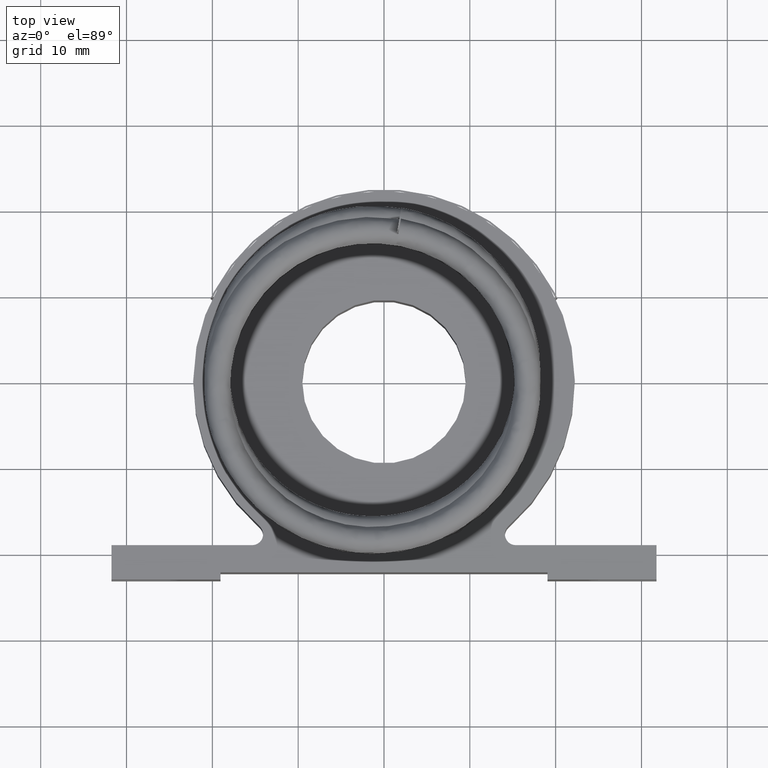
[diagram: clean part render]
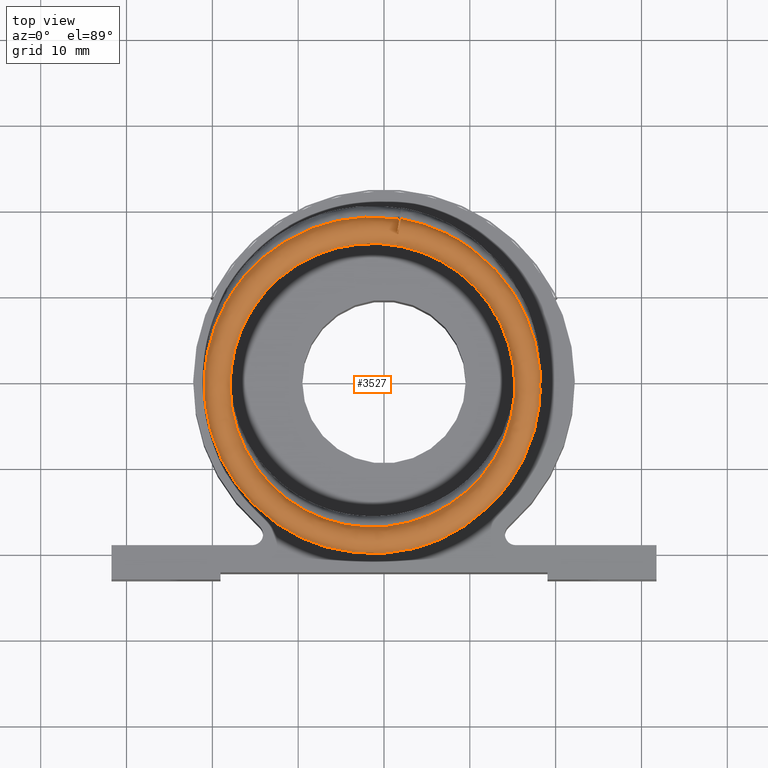
[diagram: same view with one face highlighted and labeled with its STEP entity id]
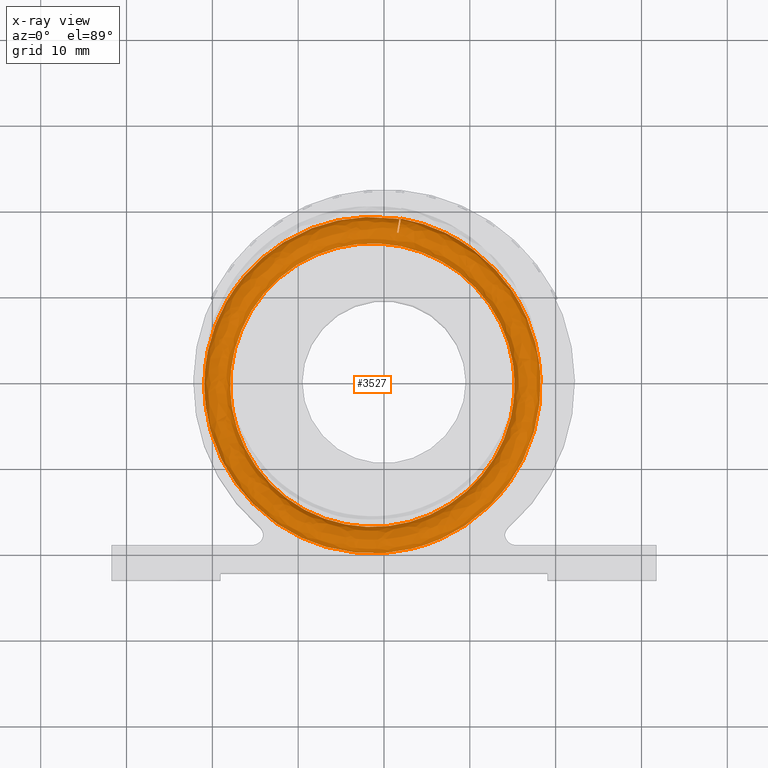
[diagram: x-ray of the same camera — body ghosted, the highlighted face saturated]
A machine part, top view. The second image highlights one B-rep face of the part: STEP entity #3527.
The next image is the same camera in x-ray: the body ghosted, the highlighted face saturated — about 0% of this face is hidden behind the body in this view.
In plain terms, the highlighted face is a freeform B-spline surface patch.
Its self-contained STEP definition (entity closure, byte-faithful):
#1315=CARTESIAN_POINT('',(2.767463303248415,18.488003495267634,22.667128851475837));
#1316=VERTEX_POINT('',#1315);
#1317=CARTESIAN_POINT('',(1.777487957128099,18.58833663540857,28.204418487805686));
#1318=VERTEX_POINT('',#1317);
#1319=CARTESIAN_POINT('',(2.767476702032136,18.488000571162775,22.667434783590092));
#1320=CARTESIAN_POINT('',(1.77780893483778,18.701263720099753,22.713956732471559));
#1321=CARTESIAN_POINT('',(0.770264977444911,18.838284025425835,22.761598521060435));
#1322=CARTESIAN_POINT('',(-0.238086244748882,18.89527820255724,22.809441229161131));
#1323=CARTESIAN_POINT('',(-1.783110449280664,18.982606289484934,22.882747176929119));
#1324=CARTESIAN_POINT('',(-3.33381357287516,18.883463338174703,22.956681629890312));
#1325=CARTESIAN_POINT('',(-4.85349634329244,18.606268114072684,23.033296768222261));
#1326=CARTESIAN_POINT('',(-6.361451518472454,18.331212042597294,23.109320657282392));
#1327=CARTESIAN_POINT('',(-7.840281022637895,17.880336001436127,23.188306806034173));
#1328=CARTESIAN_POINT('',(-9.249776957908395,17.257064118460711,23.270565689200378));
#1329=CARTESIAN_POINT('',(-10.758699619224837,16.589826246502966,23.358627165504135));
#1330=CARTESIAN_POINT('',(-12.184713546577392,15.725855862453312,23.449610368595543));
#1331=CARTESIAN_POINT('',(-13.479129041397382,14.698382923754689,23.550181082102025));
#1332=CARTESIAN_POINT('',(-13.998860908146924,14.285833452119435,23.590562091816629));
#1333=CARTESIAN_POINT('',(-14.497517057225872,13.846848831091316,23.632609045426186));
#1334=CARTESIAN_POINT('',(-14.972186559607175,13.383497097081539,23.67626389152143));
#1335=CARTESIAN_POINT('',(-15.242360635337267,13.119764909009628,23.701111512099015));
#1336=CARTESIAN_POINT('',(-15.505570596121945,12.847249147211462,23.726557978531741));
#1337=CARTESIAN_POINT('',(-15.758787852499314,12.569085345443696,23.752300722501563));
#1338=CARTESIAN_POINT('',(-16.027429566981908,12.27397749346332,23.779611558162909));
#1339=CARTESIAN_POINT('',(-16.278448282575365,11.979649845782662,23.806595817258831));
#1340=CARTESIAN_POINT('',(-16.513000426507322,11.687999645610335,23.833085091831723));
#1341=CARTESIAN_POINT('',(-17.78545118161756,10.105790627111713,23.97679001333686));
#1342=CARTESIAN_POINT('',(-18.577184295211261,8.605494652192247,24.107759505680235));
#1343=CARTESIAN_POINT('',(-19.073305448758486,7.485889762025707,24.20931215770263));
#1344=CARTESIAN_POINT('',(-19.153438691646627,7.305051734941005,24.22571489173697));
#1345=CARTESIAN_POINT('',(-19.22485095383831,7.136394870725049,24.24108889535378));
#1346=CARTESIAN_POINT('',(-19.291202138346325,6.973794626197787,24.255981738659766));
#1347=CARTESIAN_POINT('',(-19.626310359093729,6.152578259969376,24.331198394687028));
#1348=CARTESIAN_POINT('',(-19.900875598398134,5.312906038929128,24.410113146524012));
#1349=CARTESIAN_POINT('',(-20.113685617677845,4.459308184530906,24.490666880814494));
#1350=CARTESIAN_POINT('',(-20.199978344063897,4.113181219538286,24.523330762787865));
#1351=CARTESIAN_POINT('',(-20.276103277018752,3.764759690167585,24.556250921807042));
#1352=CARTESIAN_POINT('',(-20.341940171149528,3.414340088233943,24.589231362360884));
#1353=CARTESIAN_POINT('',(-20.35990347511019,3.318729657237537,24.598229928989021));
#1354=CARTESIAN_POINT('',(-20.377100776468836,3.222970530710492,24.607232911852435));
#1355=CARTESIAN_POINT('',(-20.393532480289426,3.127069657292432,24.616239925799022));
#1356=CARTESIAN_POINT('',(-20.562849543873696,2.138879116639844,24.709050821720069));
#1357=CARTESIAN_POINT('',(-20.651207413599234,1.133201000026285,24.802476625354814));
#1358=CARTESIAN_POINT('',(-20.656895270188627,0.125046327690049,24.895713590740126));
#1359=CARTESIAN_POINT('',(-20.66251643403778,-0.871287266419729,24.987857309730156));
#1360=CARTESIAN_POINT('',(-20.587823790404567,-1.862470503036944,25.079173568695079));
#1361=CARTESIAN_POINT('',(-20.432869268072473,-2.842689622210564,25.169698298242242));
#1362=CARTESIAN_POINT('',(-20.36185497132778,-3.291915436056975,25.211184986788304));
#1363=CARTESIAN_POINT('',(-20.273908563572689,-3.738824862026471,25.252492848376537));
#1364=CARTESIAN_POINT('',(-20.169122751409969,-4.182902537111826,25.293204635379599));
#1365=CARTESIAN_POINT('',(-20.058597041155757,-4.651305648504711,25.336146509678805));
#1366=CARTESIAN_POINT('',(-19.929339847296291,-5.116561815205262,25.378421584256426));
#1367=CARTESIAN_POINT('',(-19.781362313717523,-5.578043731978723,25.419670733011102));
#1368=CARTESIAN_POINT('',(-19.641548432786962,-6.014066526810812,25.458644240901091));
#1369=CARTESIAN_POINT('',(-19.485241575024947,-6.445911669188289,25.496634812903768));
#1370=CARTESIAN_POINT('',(-19.313445281650306,-6.871361050639881,25.533610828719091));
#1371=CARTESIAN_POINT('',(-18.774104522755486,-8.207025445697799,25.649694080802142));
#1372=CARTESIAN_POINT('',(-18.081076213463852,-9.483014526284823,25.756109161148853));
#1373=CARTESIAN_POINT('',(-17.25401840711563,-10.664552518292089,25.855225897729841));
#1374=CARTESIAN_POINT('',(-16.942105998119619,-11.11015179633352,25.892606283769972));
#1375=CARTESIAN_POINT('',(-16.607464636322092,-11.545976119292046,25.929260482927372));
#1376=CARTESIAN_POINT('',(-16.272605735563538,-11.946701029869093,25.963269218458304));
#1377=CARTESIAN_POINT('',(-15.916569335154195,-12.372769007733833,25.999428770297833));
#1378=CARTESIAN_POINT('',(-15.557132915668841,-12.764595038300484,26.033019860602622));
#1379=CARTESIAN_POINT('',(-15.20059240835462,-13.124927535412038,26.064084379415995));
#1380=CARTESIAN_POINT('',(-14.143533392197231,-14.193228912317274,26.156183394873249));
#1381=CARTESIAN_POINT('',(-13.112547324339339,-14.985895350924217,26.227069736514206));
#1382=CARTESIAN_POINT('',(-12.258749202717304,-15.562593815059584,26.281820233244002));
#1383=CARTESIAN_POINT('',(-12.029070727727587,-15.717730281651811,26.296548551654844));
#1384=CARTESIAN_POINT('',(-11.816862230384633,-15.854565871480832,26.309787847152045));
#1385=CARTESIAN_POINT('',(-11.593598455947955,-15.992595334080779,26.323408680740755));
#1386=CARTESIAN_POINT('',(-10.540382326381716,-16.643730327800309,26.3876630886489));
#1387=CARTESIAN_POINT('',(-9.357806485802483,-17.237920789253717,26.452523217876937));
#1388=CARTESIAN_POINT('',(-8.045500886987398,-17.717040036638714,26.518717251808624));
#1389=CARTESIAN_POINT('',(-7.99957332228162,-17.733808067085224,26.521033885052649));
#1390=CARTESIAN_POINT('',(-7.953486496741688,-17.75043388750046,26.523352271756238));
#1391=CARTESIAN_POINT('',(-7.907240556251235,-17.76691533278073,26.525672357329253));
#1392=CARTESIAN_POINT('',(-7.481756288684449,-17.918552332680534,26.547018228994055));
#1393=CARTESIAN_POINT('',(-7.042811670422237,-18.057979545347255,26.568506955089145));
#1394=CARTESIAN_POINT('',(-6.590472525359478,-18.183458615184186,26.590193971526666));
#1395=CARTESIAN_POINT('',(-5.77664782449972,-18.409213930833538,26.629212106166239));
#1396=CARTESIAN_POINT('',(-4.923445149832533,-18.589756644952967,26.668696148841082));
#1397=CARTESIAN_POINT('',(-4.013524059864828,-18.714532677344135,26.70978995442691));
#1398=CARTESIAN_POINT('',(-2.597851636132318,-18.908661586044555,26.773724473579716));
#1399=CARTESIAN_POINT('',(-1.051492713149137,-18.964426773552212,26.841295432291268));
#1400=CARTESIAN_POINT('',(0.578062950295359,-18.804572714324973,26.911371121211321));
#1401=CARTESIAN_POINT('',(1.035458016095538,-18.759703760426142,26.93104045504483));
#1402=CARTESIAN_POINT('',(1.49942216494762,-18.69778764320969,26.950894370751808));
#1403=CARTESIAN_POINT('',(1.968855740600151,-18.616845065740414,26.970957143216324));
#1404=CARTESIAN_POINT('',(2.297763024364831,-18.560132881786963,26.985014067003505));
#1405=CARTESIAN_POINT('',(2.630764378145517,-18.493729226697624,26.999235278105797));
#1406=CARTESIAN_POINT('',(2.961952378054721,-18.418445874953161,27.013369460857991));
#1407=CARTESIAN_POINT('',(3.808162137095668,-18.226091360426839,27.049483339936501));
#1408=CARTESIAN_POINT('',(4.641750431644231,-17.97659102632965,27.085014593276295));
#1409=CARTESIAN_POINT('',(5.455393642186582,-17.673103830076204,27.119515832881238));
#1410=CARTESIAN_POINT('',(6.587479017523422,-17.250838380025325,27.167520103403831));
#1411=CARTESIAN_POINT('',(7.680966505948168,-16.724084799658115,27.213593634405363));
#1412=CARTESIAN_POINT('',(8.716131763497392,-16.101217523909089,27.255542763948704));
#1413=CARTESIAN_POINT('',(8.990118935041959,-15.936357235287945,27.266645844609997));
#1414=CARTESIAN_POINT('',(9.261827573588187,-15.763524023781329,27.277522426423058));
#1415=CARTESIAN_POINT('',(9.524497160911574,-15.587241996561884,27.287919541649309));
#1416=CARTESIAN_POINT('',(10.096521664638711,-15.203346623809537,27.310561693480036));
#1417=CARTESIAN_POINT('',(10.61942193760842,-14.808106573967676,27.33069008760911));
#1418=CARTESIAN_POINT('',(11.096709586492196,-14.411057861895916,27.348873939362942));
#1419=CARTESIAN_POINT('',(12.584838306249933,-13.173105040450309,27.405569125366572));
#1420=CARTESIAN_POINT('',(13.632567150439852,-11.920719035155805,27.443161139852492));
#1421=CARTESIAN_POINT('',(14.346408079966347,-10.937808410556604,27.4660457238021));
#1422=CARTESIAN_POINT('',(14.459592330898033,-10.781961360917897,27.469674227555643));
#1423=CARTESIAN_POINT('',(14.56394012198815,-10.633387079568839,27.472932657016003));
#1424=CARTESIAN_POINT('',(14.660923208149422,-10.491520980996585,27.475887027243505));
#1425=CARTESIAN_POINT('',(14.765219749087453,-10.338956818077953,27.479064185318951));
#1426=CARTESIAN_POINT('',(14.867207570408153,-10.185026971334894,27.482078556470675));
#1427=CARTESIAN_POINT('',(14.966859600195153,-10.029774355902539,27.484920457990256));
#1428=CARTESIAN_POINT('',(15.738454275798306,-8.827670478067661,27.506924988011235));
#1429=CARTESIAN_POINT('',(16.370579398537078,-7.546488204531563,27.518014741719163));
#1430=CARTESIAN_POINT('',(16.84854019917778,-6.205279551024425,27.52516752282898));
#1431=CARTESIAN_POINT('',(17.180085822611744,-5.274927399580273,27.530129170874513));
#1432=CARTESIAN_POINT('',(17.437754375411181,-4.314167892800473,27.53349124160744));
#1433=CARTESIAN_POINT('',(17.61708546278977,-3.335064391069493,27.534724942496155));
#1434=CARTESIAN_POINT('',(17.721661121350575,-2.764107090863377,27.535444366466589));
#1435=CARTESIAN_POINT('',(17.799339711240844,-2.188356426302272,27.535425507751921));
#1436=CARTESIAN_POINT('',(17.849530331633733,-1.609709931500149,27.534624035216343));
#1437=CARTESIAN_POINT('',(17.873320570908561,-1.335432816391323,27.534244139067532));
#1438=CARTESIAN_POINT('',(17.890928768377567,-1.060505610534754,27.533689012066411));
#1439=CARTESIAN_POINT('',(17.902325722544013,-0.785133657163119,27.533039705527443));
#1440=CARTESIAN_POINT('',(17.956143634285002,0.51520880855723,27.529973594924851));
#1441=CARTESIAN_POINT('',(17.87069274997145,1.817560175834692,27.524946537758034));
#1442=CARTESIAN_POINT('',(17.650279345455434,3.094125472202704,27.526723639464244));
#1443=CARTESIAN_POINT('',(17.61601779565035,3.292557620995971,27.526999876105794));
#1444=CARTESIAN_POINT('',(17.578497086639384,3.490417445624127,27.527434865626574));
#1445=CARTESIAN_POINT('',(17.537734895389917,3.6876246721985,27.528050457321761));
#1446=CARTESIAN_POINT('',(17.417424020424562,4.269687933553805,27.529867395351815));
#1447=CARTESIAN_POINT('',(17.268910351060217,4.846066557004459,27.533255812329877));
#1448=CARTESIAN_POINT('',(17.092883596962757,5.414790197640595,27.537909541652741));
#1449=CARTESIAN_POINT('',(16.892123690044571,6.0634240132313,27.543217156796079));
#1450=CARTESIAN_POINT('',(16.653043704927146,6.706612003782404,27.550238531508292));
#1451=CARTESIAN_POINT('',(16.389558846208807,7.314183350269019,27.558197483096169));
#1452=CARTESIAN_POINT('',(15.715577043002371,8.868322110551075,27.578556104722193));
#1453=CARTESIAN_POINT('',(14.876579213362282,10.22320025844521,27.606337307721329));
#1454=CARTESIAN_POINT('',(13.975542942789236,11.3839970766366,27.642096255105631));
#1455=CARTESIAN_POINT('',(13.709459452489062,11.726790012948992,27.652656169107122));
#1456=CARTESIAN_POINT('',(13.439485360715425,12.050838830605365,27.663767951338823));
#1457=CARTESIAN_POINT('',(13.162953539984494,12.362099396776127,27.675511531397152));
#1458=CARTESIAN_POINT('',(12.45571800854535,13.158154372836272,27.705545966716752));
#1459=CARTESIAN_POINT('',(11.686776490827286,13.89072019604507,27.740365365934181));
#1460=CARTESIAN_POINT('',(10.863115166480794,14.554053706948247,27.777709801495991));
#1461=CARTESIAN_POINT('',(10.39494123547094,14.931096367797366,27.798936597852112));
#1462=CARTESIAN_POINT('',(9.909054546982375,15.285677686198994,27.821033708592132));
#1463=CARTESIAN_POINT('',(9.407126480943903,15.617149898296413,27.84404464264647));
#1464=CARTESIAN_POINT('',(8.131136583898014,16.459810873854092,27.902542505909352));
#1465=CARTESIAN_POINT('',(6.746825916124327,17.15502932279129,27.96737412581485));
#1466=CARTESIAN_POINT('',(5.301120418128504,17.677963818899922,28.036240720703653));
#1467=CARTESIAN_POINT('',(4.424051205233331,17.99521359593512,28.078020163513841));
#1468=CARTESIAN_POINT('',(3.524856201843403,18.249381370945375,28.121112749706043));
#1469=CARTESIAN_POINT('',(2.609188005278302,18.43698960287961,28.164783157785536));
#1470=CARTESIAN_POINT('',(2.333434416792062,18.493487844687603,28.177934506476852));
#1471=CARTESIAN_POINT('',(2.056155388124187,18.543941203063877,28.191145573962455));
#1472=CARTESIAN_POINT('',(1.777487957081692,18.588336635045422,28.2044184880464));
#1473=B_SPLINE_CURVE_WITH_KNOTS('',3,(#1319,#1320,#1321,#1322,#1323,#1324,#1325,#1326,#1327,#1328,#1329,#1330,#1331,#1332,#1333,#1334,#1335,#1336,#1337,#1338,#1339,#1340,#1341,#1342,#1343,#1344,#1345,#1346,#1347,#1348,#1349,#1350,#1351,#1352,#1353,#1354,#1355,#1356,#1357,#1358,#1359,#1360,#1361,#1362,#1363,#1364,#1365,#1366,#1367,#1368,#1369,#1370,#1371,#1372,#1373,#1374,#1375,#1376,#1377,#1378,#1379,#1380,#1381,#1382,#1383,#1384,#1385,#1386,#1387,#1388,#1389,#1390,#1391,#1392,#1393,#1394,#1395,#1396,#1397,#1398,#1399,#1400,#1401,#1402,#1403,#1404,#1405,#1406,#1407,#1408,#1409,#1410,#1411,#1412,#1413,#1414,#1415,#1416,#1417,#1418,#1419,#1420,#1421,#1422,#1423,#1424,#1425,#1426,#1427,#1428,#1429,#1430,#1431,#1432,#1433,#1434,#1435,#1436,#1437,#1438,#1439,#1440,#1441,#1442,#1443,#1444,#1445,#1446,#1447,#1448,#1449,#1450,#1451,#1452,#1453,#1454,#1455,#1456,#1457,#1458,#1459,#1460,#1461,#1462,#1463,#1464,#1465,#1466,#1467,#1468,#1469,#1470,#1471,#1472),.UNSPECIFIED.,.F.,.U.,(4,3,3,3,3,3,3,3,3,3,3,3,3,3,3,3,3,3,3,3,3,3,3,3,3,3,3,3,3,3,3,3,3,3,3,3,3,3,3,3,3,3,3,3,3,3,3,3,3,3,3,4),(-6.419355101932355,-6.364242910545364,-6.279798455296489,-6.19600566920546,-6.106302087503873,-6.070284433081117,-6.049783776424611,-6.028034344213658,-5.910043176125792,-5.890985301122,-5.794733054367068,-5.755703553682003,-5.745054527881272,-5.635323863410942,-5.526879841560183,-5.477180898722018,-5.424759575236529,-5.375230241270968,-5.21973684823084,-5.161094854365553,-5.098744161696708,-4.913888975547621,-4.864161462481648,-4.629578763266587,-4.621368928524753,-4.545834611676031,-4.409937257920524,-4.198505587316295,-4.139159469194841,-4.097578782329457,-3.991337061546215,-3.84351465389759,-3.804389071709445,-3.719183959224706,-3.453524088798007,-3.411401940581037,-3.366103378431718,-3.015361607876718,-2.772063624387053,-2.630186121596732,-2.562936509763377,-2.245375026106746,-2.196012562819324,-2.050317717510128,-1.884151592748553,-1.459106506881395,-1.333587164679397,-1.012568995943948,-0.830100384707764,-0.366232910025609,-0.084817447836971,-0.000069147256988),.UNSPECIFIED.);
#1474=EDGE_CURVE('',#1316,#1318,#1473,.T.);
#1476=CARTESIAN_POINT('',(1.516288966607133,17.089063496967423,29.204197711063756));
#1477=VERTEX_POINT('',#1476);
#1511=CARTESIAN_POINT('',(12.751657822025376,-9.406533288948893,21.14361142706478));
#1512=VERTEX_POINT('',#1511);
#1513=CARTESIAN_POINT('',(12.751598487213233,-9.406450548978768,21.143167947275732));
#1514=CARTESIAN_POINT('',(12.753808377650552,-9.402891305057585,21.143536325510301));
#1515=CARTESIAN_POINT('',(12.756016351797694,-9.39933221869264,21.143904744421025));
#1516=CARTESIAN_POINT('',(12.7582224115842,-9.395773291732727,21.144273204015555));
#1517=CARTESIAN_POINT('',(13.323369972525562,-8.48404873047298,21.238665043451348));
#1518=CARTESIAN_POINT('',(13.763382041008422,-7.583115716908123,21.335963767842998));
#1519=CARTESIAN_POINT('',(14.107177020078897,-6.721387072685397,21.435045418001931));
#1520=CARTESIAN_POINT('',(14.323256126838515,-6.179780687925913,21.49731937709376));
#1521=CARTESIAN_POINT('',(14.501272789940003,-5.653645956481208,21.560219314600744));
#1522=CARTESIAN_POINT('',(14.648744483952445,-5.149902968524377,21.621711836470844));
#1523=CARTESIAN_POINT('',(14.703075135501411,-4.964316948561727,21.64436654862401));
#1524=CARTESIAN_POINT('',(14.753249633718545,-4.781764870724904,21.666827448529176));
#1525=CARTESIAN_POINT('',(14.799610060355519,-4.602580001998894,21.688981038884602));
#1526=CARTESIAN_POINT('',(14.924555895707902,-4.119659443894662,21.748687108345269));
#1527=CARTESIAN_POINT('',(15.021813140724014,-3.66118971927878,21.806157586498514));
#1528=CARTESIAN_POINT('',(15.09793749158691,-3.233870768684247,21.860162791472138));
#1529=CARTESIAN_POINT('',(15.139265262211937,-3.00188009324709,21.889482118315755));
#1530=CARTESIAN_POINT('',(15.17607421510797,-2.769486902135151,21.918993449714602));
#1531=CARTESIAN_POINT('',(15.208471940144591,-2.536283719311989,21.948730355897169));
#1532=CARTESIAN_POINT('',(15.370294692400792,-1.371461780836599,22.097262636994305));
#1533=CARTESIAN_POINT('',(15.421549400053994,-0.191959775277224,22.250873677959099));
#1534=CARTESIAN_POINT('',(15.360763284239187,0.984858386363094,22.404271570168174));
#1535=CARTESIAN_POINT('',(15.307676629442232,2.012615114496854,22.538239349506032));
#1536=CARTESIAN_POINT('',(15.169456170182279,3.037017016323253,22.671268063882888));
#1537=CARTESIAN_POINT('',(14.943823199760903,4.041798504111814,22.792091918795105));
#1538=CARTESIAN_POINT('',(14.858206225219714,4.423065261797066,22.83793882180165));
#1539=CARTESIAN_POINT('',(14.759926233963832,4.8014610854424,22.882109686840792));
#1540=CARTESIAN_POINT('',(14.649203611128872,5.175942318308032,22.924681215315893));
#1541=CARTESIAN_POINT('',(14.291689641568402,6.385110496045767,23.062141074427757));
#1542=CARTESIAN_POINT('',(13.804147216607575,7.554738211591403,23.183349286868488));
#1543=CARTESIAN_POINT('',(13.191951361611959,8.66093327713755,23.294476547015677));
#1544=CARTESIAN_POINT('',(12.600781711049798,9.729135462788063,23.401787080096));
#1545=CARTESIAN_POINT('',(11.894142634722929,10.736777425961648,23.498666481234988));
#1546=CARTESIAN_POINT('',(11.08021986008711,11.656217517962418,23.584233098023471));
#1547=CARTESIAN_POINT('',(10.626207838333016,12.169087863970141,23.631962776923512));
#1548=CARTESIAN_POINT('',(10.13931271231457,12.653809286876873,23.676330139351716));
#1549=CARTESIAN_POINT('',(9.62456780353733,13.106522125971479,23.718522454196133));
#1550=CARTESIAN_POINT('',(8.986586808674169,13.667619831938088,23.770816113717633));
#1551=CARTESIAN_POINT('',(8.305492377497075,14.179955215174667,23.819819172164038));
#1552=CARTESIAN_POINT('',(7.589547053317601,14.63795019481659,23.866918861740942));
#1553=CARTESIAN_POINT('',(6.76415257760512,15.165960523725071,23.921218851239587));
#1554=CARTESIAN_POINT('',(5.894215946544483,15.62032394419391,23.972681216605025));
#1555=CARTESIAN_POINT('',(4.997064862256242,15.99256704283782,24.021420435141096));
#1556=CARTESIAN_POINT('',(4.661760287309959,16.131690559660527,24.039636411514145));
#1557=CARTESIAN_POINT('',(4.32225292179282,16.259556204774086,24.057504385445863));
#1558=CARTESIAN_POINT('',(3.97888478756172,16.375895391901761,24.075079098299348));
#1559=CARTESIAN_POINT('',(3.394026766185815,16.574055617061671,24.105014059529097));
#1560=CARTESIAN_POINT('',(2.798014305999507,16.738807083591841,24.134117628352001));
#1561=CARTESIAN_POINT('',(2.192942510906998,16.870143558695958,24.162857652029579));
#1562=CARTESIAN_POINT('',(1.868693124636051,16.940524911442683,24.17825902276682));
#1563=CARTESIAN_POINT('',(1.54183260449296,17.001298770312637,24.193551948324782));
#1564=CARTESIAN_POINT('',(1.212644071451928,17.052370859476628,24.208786359903524));
#1565=CARTESIAN_POINT('',(1.021626123149651,17.082006416941201,24.217626418870587));
#1566=CARTESIAN_POINT('',(0.83185892474084,17.108134910227566,24.226353501869145));
#1567=CARTESIAN_POINT('',(0.636888765102839,17.131491989206598,24.23527322236696));
#1568=CARTESIAN_POINT('',(0.339969101937885,17.167062437709323,24.248857046736052));
#1569=CARTESIAN_POINT('',(0.015794620284201,17.197852826357632,24.263577100393192));
#1570=CARTESIAN_POINT('',(-0.332971267358796,17.219238198418431,24.279309433989258));
#1571=CARTESIAN_POINT('',(-1.491712963406553,17.290289075727017,24.331578625328735));
#1572=CARTESIAN_POINT('',(-2.921832929690795,17.259731964435439,24.395103416457651));
#1573=CARTESIAN_POINT('',(-4.528919433759004,16.946172024253347,24.464858951154305));
#1574=CARTESIAN_POINT('',(-4.921513834809637,16.869572614951085,24.481899497692947));
#1575=CARTESIAN_POINT('',(-5.324627327311553,16.775877818346107,24.499293758753179));
#1576=CARTESIAN_POINT('',(-5.736842642869413,16.662488124341234,24.516995397537258));
#1577=CARTESIAN_POINT('',(-6.106859751194602,16.560706057770563,24.532884931351976));
#1578=CARTESIAN_POINT('',(-6.476350939075329,16.445090760855464,24.548684054945657));
#1579=CARTESIAN_POINT('',(-6.840046011482286,16.317265724458093,24.564191519228483));
#1580=CARTESIAN_POINT('',(-7.414447797096633,16.115385262710419,24.588683231792682));
#1581=CARTESIAN_POINT('',(-7.977939229463859,15.88208611315609,24.612595365995485));
#1582=CARTESIAN_POINT('',(-8.527244493611487,15.618984424367881,24.635926742157817));
#1583=CARTESIAN_POINT('',(-9.319486035611377,15.239523128012404,24.669576675326592));
#1584=CARTESIAN_POINT('',(-10.082209855331159,14.798059351732945,24.702086941165554));
#1585=CARTESIAN_POINT('',(-10.805646396583597,14.299485224135958,24.732321106704614));
#1586=CARTESIAN_POINT('',(-11.155192800097655,14.058586702636097,24.746929497661935));
#1587=CARTESIAN_POINT('',(-11.497054804984607,13.803136156467644,24.761056113047658));
#1588=CARTESIAN_POINT('',(-11.82526483593783,13.537697164507653,24.774310058144184));
#1589=CARTESIAN_POINT('',(-11.953801276557114,13.433743659098274,24.779500682336636));
#1590=CARTESIAN_POINT('',(-12.079780552369925,13.328665488966955,24.784538641413619));
#1591=CARTESIAN_POINT('',(-12.203234286586415,13.222566509979838,24.789416968872089));
#1592=CARTESIAN_POINT('',(-13.263832383188449,12.311064108863123,24.8313269592818));
#1593=CARTESIAN_POINT('',(-14.138990329408564,11.325467826012007,24.861151422026484));
#1594=CARTESIAN_POINT('',(-14.855936356926755,10.338616281007916,24.883581589928284));
#1595=CARTESIAN_POINT('',(-15.31635508298127,9.704865742311771,24.897986118210959));
#1596=CARTESIAN_POINT('',(-15.710072843117578,9.072236440517493,24.909404554184103));
#1597=CARTESIAN_POINT('',(-16.047423486649951,8.453463886063553,24.917951215391124));
#1598=CARTESIAN_POINT('',(-16.468438578050925,7.681233008297821,24.928617486282356));
#1599=CARTESIAN_POINT('',(-16.805760250105653,6.923043550171723,24.934876143279396));
#1600=CARTESIAN_POINT('',(-17.076157107643912,6.194900104275757,24.936979694255193));
#1601=CARTESIAN_POINT('',(-17.383576138676769,5.367060777191139,24.939371259041096));
#1602=CARTESIAN_POINT('',(-17.604646065817448,4.578164736768274,24.936517770731665));
#1603=CARTESIAN_POINT('',(-17.764831368021078,3.851889022020001,24.93256261989093));
#1604=CARTESIAN_POINT('',(-17.837804654676646,3.521030165469417,24.930760829388952));
#1605=CARTESIAN_POINT('',(-17.898087257167919,3.203147297154061,24.928718486008201));
#1606=CARTESIAN_POINT('',(-17.947906971334664,2.900452083339711,24.926725369348524));
#1607=CARTESIAN_POINT('',(-17.999513016799334,2.586903456509788,24.924660787672856));
#1608=CARTESIAN_POINT('',(-18.039690081615376,2.293790037949314,24.922670557760405));
#1609=CARTESIAN_POINT('',(-18.073424771997864,1.994823693811739,24.920624397934613));
#1610=CARTESIAN_POINT('',(-18.238241876044238,0.534168015950108,24.910627503548472));
#1611=CARTESIAN_POINT('',(-18.224339756816715,-0.948548724523957,24.900051276992485));
#1612=CARTESIAN_POINT('',(-18.03158463850778,-2.401616416564722,24.892610330688786));
#1613=CARTESIAN_POINT('',(-17.986988009538113,-2.73780422469285,24.890888762284273));
#1614=CARTESIAN_POINT('',(-17.932844890066718,-3.072502000470565,24.88934222018748));
#1615=CARTESIAN_POINT('',(-17.86922455561351,-3.405314039195338,24.888239289221168));
#1616=CARTESIAN_POINT('',(-17.768591072304659,-3.931750044787661,24.88649469315855));
#1617=CARTESIAN_POINT('',(-17.644264094972684,-4.453483551862014,24.88587776885252));
#1618=CARTESIAN_POINT('',(-17.496049974239426,-4.968822122269879,24.887154244254695));
#1619=CARTESIAN_POINT('',(-17.24017971812329,-5.858479675439812,24.889357894530828));
#1620=CARTESIAN_POINT('',(-16.913162391405006,-6.728998469627348,24.89715028064203));
#1621=CARTESIAN_POINT('',(-16.516377872842149,-7.572409974882987,24.909721466440562));
#1622=CARTESIAN_POINT('',(-16.437707750069769,-7.739632443406761,24.912213944558779));
#1623=CARTESIAN_POINT('',(-16.352766450288364,-7.913378113138375,24.915004601065998));
#1624=CARTESIAN_POINT('',(-16.259278372360978,-8.095947589837214,24.918193099516397));
#1625=CARTESIAN_POINT('',(-15.881245360902087,-8.834194547171643,24.931086269404574));
#1626=CARTESIAN_POINT('',(-15.372766064528784,-9.698335794425109,24.950271015062199));
#1627=CARTESIAN_POINT('',(-14.687474778912998,-10.607635079623105,24.978368157134959));
#1628=CARTESIAN_POINT('',(-14.395874318490604,-10.994553891799786,24.990323860843649));
#1629=CARTESIAN_POINT('',(-14.072163961714956,-11.3896452905832,25.003884100322466));
#1630=CARTESIAN_POINT('',(-13.7121907390205,-11.786240126366586,25.019600739317834));
#1631=CARTESIAN_POINT('',(-13.396607869780663,-12.133928588484384,25.033379269820294));
#1632=CARTESIAN_POINT('',(-13.053140174781513,-12.482749168128825,25.048815907108946));
#1633=CARTESIAN_POINT('',(-12.679200053456103,-12.828282097104363,25.065978835273484));
#1634=CARTESIAN_POINT('',(-12.401343573783786,-13.085030591798411,25.078731761554206));
#1635=CARTESIAN_POINT('',(-12.112827021664964,-13.334121233294612,25.092153864861601));
#1636=CARTESIAN_POINT('',(-11.817094247880524,-13.57247036515386,25.106033579550768));
#1637=CARTESIAN_POINT('',(-10.50453429917922,-14.630342714852274,25.167636348047708));
#1638=CARTESIAN_POINT('',(-9.032362286744595,-15.492928889437861,25.238784123459411));
#1639=CARTESIAN_POINT('',(-7.461168185759714,-16.114051719213709,25.314219873762013));
#1640=CARTESIAN_POINT('',(-7.406742908413867,-16.135567063661092,25.316832925599108));
#1641=CARTESIAN_POINT('',(-7.352198769850151,-16.156792490854457,25.319451447540917));
#1642=CARTESIAN_POINT('',(-7.297538305797218,-16.177726064958492,25.32207551238211));
#1643=CARTESIAN_POINT('',(-5.229895090447587,-16.969581077885458,25.421336101539794));
#1644=CARTESIAN_POINT('',(-3.002202452079262,-17.341356294679418,25.527220624792797));
#1645=CARTESIAN_POINT('',(-0.789339388686652,-17.269587582854118,25.635821870120861));
#1646=CARTESIAN_POINT('',(-0.389292641320777,-17.256613061202366,25.655455066441093));
#1647=CARTESIAN_POINT('',(0.009928855574277,-17.229135864137334,25.67519484697392));
#1648=CARTESIAN_POINT('',(0.406584072600451,-17.187221244529336,25.695031524843753));
#1649=CARTESIAN_POINT('',(0.837606349745465,-17.141675052235296,25.716586895098427));
#1650=CARTESIAN_POINT('',(1.2659718731463,-17.079076454167872,25.738277367079419));
#1651=CARTESIAN_POINT('',(1.690915294080045,-16.999943910288877,25.760103313008663));
#1652=CARTESIAN_POINT('',(3.71531092226574,-16.622962957097872,25.864080330520991));
#1653=CARTESIAN_POINT('',(5.6689626474177,-15.870315358272041,25.970343572690325));
#1654=CARTESIAN_POINT('',(7.427411397497527,-14.783937580480352,26.089712040420412));
#1655=CARTESIAN_POINT('',(7.529605354023991,-14.720801681074741,26.096649254826737));
#1656=CARTESIAN_POINT('',(7.631132107355365,-14.656539307881603,26.103634746292268));
#1657=CARTESIAN_POINT('',(7.731965595324006,-14.591158883725456,26.110672329233815));
#1658=CARTESIAN_POINT('',(8.491132910017562,-14.098914867971642,26.16365773171567));
#1659=CARTESIAN_POINT('',(9.209707683893406,-13.544122250438139,26.219615010060242));
#1660=CARTESIAN_POINT('',(9.879287213891027,-12.936067645532184,26.27825897807136));
#1661=CARTESIAN_POINT('',(10.634920098070008,-12.249866777287258,26.344439780653694));
#1662=CARTESIAN_POINT('',(11.328628144430077,-11.495415707456516,26.413847818014734));
#1663=CARTESIAN_POINT('',(11.950047448855925,-10.684846917560616,26.488182066047614));
#1664=CARTESIAN_POINT('',(12.150085546337491,-10.423920619561999,26.512110646071303));
#1665=CARTESIAN_POINT('',(12.341455035675351,-10.158431958106286,26.536446040575171));
#1666=CARTESIAN_POINT('',(12.519291411561046,-9.896900888557877,26.560513137231066));
#1667=CARTESIAN_POINT('',(12.7330617686985,-9.5825243170524,26.589443280582049));
#1668=CARTESIAN_POINT('',(12.92961707794554,-9.270882489316428,26.618261070718752));
#1669=CARTESIAN_POINT('',(13.110459184814447,-8.96383430583194,26.646931364212957));
#1670=CARTESIAN_POINT('',(13.890993714858997,-7.63858039375034,26.770675521180568));
#1671=CARTESIAN_POINT('',(14.381555986973334,-6.400256144695863,26.891799735142293));
#1672=CARTESIAN_POINT('',(14.701326334677283,-5.394655233488683,26.990082988477624));
#1673=CARTESIAN_POINT('',(14.770651409633793,-5.176644529724763,27.011390448513758));
#1674=CARTESIAN_POINT('',(14.831786239394173,-4.970431213326242,27.0315479271874));
#1675=CARTESIAN_POINT('',(14.889933401529762,-4.760791309896272,27.052059744008936));
#1676=CARTESIAN_POINT('',(15.077114177240002,-4.085942214899331,27.118089067588453));
#1677=CARTESIAN_POINT('',(15.220772178545479,-3.413224712799022,27.184117911869194));
#1678=CARTESIAN_POINT('',(15.324875384675869,-2.746961131303711,27.250274573990584));
#1679=CARTESIAN_POINT('',(15.390661847187273,-2.32592583608083,27.292081286140036));
#1680=CARTESIAN_POINT('',(15.44063734646522,-1.907464882499357,27.333938734074398));
#1681=CARTESIAN_POINT('',(15.475719688672946,-1.492674276676586,27.375809275432061));
#1682=CARTESIAN_POINT('',(15.557918360749744,-0.520811087306861,27.473912842131163));
#1683=CARTESIAN_POINT('',(15.558641243815748,0.430836083895229,27.57201285326191));
#1684=CARTESIAN_POINT('',(15.491767051211255,1.348653402148862,27.664924252746502));
#1685=CARTESIAN_POINT('',(15.456411660614469,1.833889761939638,27.714045127208486));
#1686=CARTESIAN_POINT('',(15.402555862160835,2.308274818880058,27.761600542647081));
#1687=CARTESIAN_POINT('',(15.329370134492152,2.78282410457094,27.808303935187929));
#1688=CARTESIAN_POINT('',(15.301726792596627,2.962068454097895,27.825944503763434));
#1689=CARTESIAN_POINT('',(15.271335778044138,3.140942663281559,27.843424703399052));
#1690=CARTESIAN_POINT('',(15.238181580882939,3.319332814167787,27.860720209782102));
#1691=CARTESIAN_POINT('',(15.042172498314875,4.373983290075251,27.962972009824455));
#1692=CARTESIAN_POINT('',(14.750290903666254,5.407416243289358,28.058403867601385));
#1693=CARTESIAN_POINT('',(14.367647211408068,6.404685531068379,28.149433289276356));
#1694=CARTESIAN_POINT('',(13.977520389356908,7.421457807319406,28.242242917945863));
#1695=CARTESIAN_POINT('',(13.493345465961335,8.401068045926932,28.330213901869953));
#1696=CARTESIAN_POINT('',(12.920267882364106,9.328871279800934,28.411524253017856));
#1697=CARTESIAN_POINT('',(12.530695921050013,9.959581912844794,28.466798152884941));
#1698=CARTESIAN_POINT('',(12.102437270260584,10.562246928092204,28.518691039549093));
#1699=CARTESIAN_POINT('',(11.638000008563186,11.132455178700601,28.567377233843935));
#1700=CARTESIAN_POINT('',(11.055584585365887,11.847509949230741,28.628430884772939));
#1701=CARTESIAN_POINT('',(10.41478265610038,12.513774752436477,28.684813962513399));
#1702=CARTESIAN_POINT('',(9.718862933301203,13.127785705651387,28.73903337675079));
#1703=CARTESIAN_POINT('',(8.945436550007186,13.810180894765688,28.799291369280841));
#1704=CARTESIAN_POINT('',(8.10968816646435,14.422406014013143,28.856180590504561));
#1705=CARTESIAN_POINT('',(7.225590255681382,14.953962506302855,28.910054113421978));
#1706=CARTESIAN_POINT('',(6.421901888702029,15.437173431286549,28.959027788315723));
#1707=CARTESIAN_POINT('',(5.582909122789217,15.850934636830488,29.005257972696992));
#1708=CARTESIAN_POINT('',(4.719770303082066,16.189738251016887,29.049610385822135));
#1709=CARTESIAN_POINT('',(3.933019415736882,16.498557687718094,29.090037602841459));
#1710=CARTESIAN_POINT('',(3.124479567707978,16.746082000423606,29.129082979372367));
#1711=CARTESIAN_POINT('',(2.297667562451324,16.932352809965472,29.167870211912494));
#1712=CARTESIAN_POINT('',(2.038975767847746,16.990632962764764,29.180005907487445));
#1713=CARTESIAN_POINT('',(1.778485153881081,17.042892389970053,29.192110466286707));
#1714=CARTESIAN_POINT('',(1.516288966533494,17.089063496461058,29.204197711400578));
#1715=B_SPLINE_CURVE_WITH_KNOTS('',3,(#1513,#1514,#1515,#1516,#1517,#1518,#1519,#1520,#1521,#1522,#1523,#1524,#1525,#1526,#1527,#1528,#1529,#1530,#1531,#1532,#1533,#1534,#1535,#1536,#1537,#1538,#1539,#1540,#1541,#1542,#1543,#1544,#1545,#1546,#1547,#1548,#1549,#1550,#1551,#1552,#1553,#1554,#1555,#1556,#1557,#1558,#1559,#1560,#1561,#1562,#1563,#1564,#1565,#1566,#1567,#1568,#1569,#1570,#1571,#1572,#1573,#1574,#1575,#1576,#1577,#1578,#1579,#1580,#1581,#1582,#1583,#1584,#1585,#1586,#1587,#1588,#1589,#1590,#1591,#1592,#1593,#1594,#1595,#1596,#1597,#1598,#1599,#1600,#1601,#1602,#1603,#1604,#1605,#1606,#1607,#1608,#1609,#1610,#1611,#1612,#1613,#1614,#1615,#1616,#1617,#1618,#1619,#1620,#1621,#1622,#1623,#1624,#1625,#1626,#1627,#1628,#1629,#1630,#1631,#1632,#1633,#1634,#1635,#1636,#1637,#1638,#1639,#1640,#1641,#1642,#1643,#1644,#1645,#1646,#1647,#1648,#1649,#1650,#1651,#1652,#1653,#1654,#1655,#1656,#1657,#1658,#1659,#1660,#1661,#1662,#1663,#1664,#1665,#1666,#1667,#1668,#1669,#1670,#1671,#1672,#1673,#1674,#1675,#1676,#1677,#1678,#1679,#1680,#1681,#1682,#1683,#1684,#1685,#1686,#1687,#1688,#1689,#1690,#1691,#1692,#1693,#1694,#1695,#1696,#1697,#1698,#1699,#1700,#1701,#1702,#1703,#1704,#1705,#1706,#1707,#1708,#1709,#1710,#1711,#1712,#1713,#1714),.UNSPECIFIED.,.F.,.U.,(4,3,3,3,3,3,3,3,3,3,3,3,3,3,3,3,3,3,3,3,3,3,3,3,3,3,3,3,3,3,3,3,3,3,3,3,3,3,3,3,3,3,3,3,3,3,3,3,3,3,3,3,3,3,3,3,3,3,3,3,3,3,3,3,3,3,3,4),(0.00012488244862,0.001386646509584,0.324624885971116,0.527783844959524,0.60263047016286,0.804349366810782,0.913862186255556,1.460865589422221,1.938582917588703,2.119853909355247,2.705162585877659,3.270368512946919,3.585644474810659,3.976401271772612,4.426894473790716,4.595263474580263,4.882045941693352,5.035728595072478,5.124905896805743,5.260713829885156,5.711922850861035,5.822148488927341,5.92109040185796,6.077354304701972,6.302727632482041,6.411622375394991,6.45426867299757,6.820645456587621,7.055930576362139,7.349567443836061,7.683408458469841,7.835491550508384,7.993027720545021,8.762699978793263,8.940774566023329,9.222449696400513,9.7087210947976,9.805133703714787,10.194992493194686,10.360882538637046,10.506315735381969,10.61437997821263,11.094004861214762,11.110618796605044,11.739074690369643,11.852688469876629,11.976145991311222,12.564287504620591,12.59846791973921,12.855809547837838,13.146224334950835,13.239710361343713,13.352086365127169,13.837113623546518,13.942265809442761,14.280759847686459,14.494666087321026,14.995852944880088,15.260822979221642,15.36090611680458,15.952602060542397,16.555869441715483,16.965964101857679,17.480232604270146,18.051776727582308,18.571338370607339,19.044918719848443,19.193091883343016),.UNSPECIFIED.);
#1716=EDGE_CURVE('',#1512,#1477,#1715,.T.);
#2922=CARTESIAN_POINT('',(1.464881356801285,15.684999237518598,32.699999963044071));
#2923=VERTEX_POINT('',#2922);
#2924=CARTESIAN_POINT('',(12.751574730185004,-9.406488642333974,21.143691526804403));
#2925=CARTESIAN_POINT('',(13.281175939859585,-8.553546325483111,21.191849966062268));
#2926=CARTESIAN_POINT('',(13.733869214085678,-7.653052186488756,21.24000840532025));
#2927=CARTESIAN_POINT('',(14.100162037914243,-6.718636905237169,21.288166844578139));
#2928=CARTESIAN_POINT('',(15.052378180520565,-4.289527578426498,21.413359696528609));
#2929=CARTESIAN_POINT('',(15.420705361453816,-1.631181246019129,21.538552548478506));
#2930=CARTESIAN_POINT('',(15.164562845923692,0.965501480419548,21.663745400428397));
#2931=CARTESIAN_POINT('',(14.908420330392405,3.562184206869961,21.788938252378856));
#2932=CARTESIAN_POINT('',(14.027808118392148,6.097203327351148,21.914131104329321));
#2933=CARTESIAN_POINT('',(12.619082824035049,8.293493242732078,22.039323956279784));
#2934=CARTESIAN_POINT('',(11.210357529684332,10.489783158103059,22.164516808229674));
#2935=CARTESIAN_POINT('',(9.273519152981592,12.347343868376893,22.289709660179572));
#2936=CARTESIAN_POINT('',(7.020289342592393,13.663078269697735,22.414902512129466));
#2937=CARTESIAN_POINT('',(4.767059532203179,14.978812671018575,22.540095364079356));
#2938=CARTESIAN_POINT('',(2.197438288127511,15.752720763386467,22.66528821602925));
#2939=CARTESIAN_POINT('',(-0.407645443018853,15.90020066917376,22.790481067979144));
#2940=CARTESIAN_POINT('',(-3.012729174177011,16.047680574961717,22.915673919929596));
#2941=CARTESIAN_POINT('',(-5.653275392406206,15.568732294163446,23.040866771880047));
#2942=CARTESIAN_POINT('',(-8.040608950942625,14.515715242513295,23.166059623830506));
#2943=CARTESIAN_POINT('',(-10.427942509468231,13.462698190867918,23.291252475780389));
#2944=CARTESIAN_POINT('',(-12.562063408303391,11.835612368375894,23.416445327730283));
#2945=CARTESIAN_POINT('',(-14.209659217017986,9.812338729420032,23.541638179678749));
#2946=CARTESIAN_POINT('',(-15.857255025732586,7.789065090464174,23.666831031627215));
#2947=CARTESIAN_POINT('',(-17.018325744326663,5.36960363504449,23.792023883574256));
#2948=CARTESIAN_POINT('',(-17.565937851353151,2.818461011165397,23.917216735522718));
#2949=CARTESIAN_POINT('',(-18.11354995838213,0.267318387274746,24.042409587471745));
#2950=CARTESIAN_POINT('',(-18.047703453838004,-2.415505405076516,24.167602439422211));
#2951=CARTESIAN_POINT('',(-17.37559695198777,-4.936711595014786,24.292795291372443));
#2952=CARTESIAN_POINT('',(-16.703490450140592,-7.457917784941611,24.417988143322098));
#2953=CARTESIAN_POINT('',(-15.425123950992834,-9.817506372456942,24.543180995271531));
#2954=CARTESIAN_POINT('',(-13.680254419245157,-11.757516193794462,24.668373847221279));
#2955=CARTESIAN_POINT('',(-11.935384887497458,-13.697526015132013,24.793566699171041));
#2956=CARTESIAN_POINT('',(-9.724012323149823,-15.217957070291783,24.918759551121124));
#2957=CARTESIAN_POINT('',(-7.287894231858051,-16.152588780656,25.043952403071113));
#2958=CARTESIAN_POINT('',(-4.851776140566287,-17.087220491020222,25.169145255021107));
#2959=CARTESIAN_POINT('',(-2.190912522330381,-17.436052856588923,25.294338106970997));
#2960=CARTESIAN_POINT('',(0.403798667048106,-17.160949905363314,25.419530958920895));
#2961=CARTESIAN_POINT('',(2.998509856438338,-16.885846954136461,25.544723810871346));
#2962=CARTESIAN_POINT('',(5.527068616970569,-15.986808686109676,25.669916662821809));
#2963=CARTESIAN_POINT('',(7.713041174441353,-14.56212213548435,25.795109514772271));
#2964=CARTESIAN_POINT('',(9.899013731902219,-13.137435584865482,25.920302366722161));
#2965=CARTESIAN_POINT('',(11.74240008630477,-11.187100751652856,26.045495218672063));
#2966=CARTESIAN_POINT('',(13.041672689377695,-8.924337287974598,26.17068807062196));
#2967=CARTESIAN_POINT('',(14.340945292450636,-6.661573824296307,26.295880922571847));
#2968=CARTESIAN_POINT('',(15.096104144193944,-4.086381730152365,26.421073774521741));
#2969=CARTESIAN_POINT('',(15.22459177556604,-1.480292952271555,26.546266626471638));
#2970=CARTESIAN_POINT('',(15.353079406938718,1.125795825621041,26.671459478422101));
#2971=CARTESIAN_POINT('',(14.854895817934521,3.762781287250812,26.796652330372559));
#2972=CARTESIAN_POINT('',(13.784504749703739,6.14237594826696,26.921845182323022));
#2973=CARTESIAN_POINT('',(12.71411368147781,8.52197060927233,27.047038034272909));
#2974=CARTESIAN_POINT('',(11.071515134030481,10.644174469666424,27.172230886222803));
#2975=CARTESIAN_POINT('',(9.036285601029523,12.276978357956187,27.2974237381727));
#2976=CARTESIAN_POINT('',(7.001056068028568,13.909782246245946,27.422616590122594));
#2977=CARTESIAN_POINT('',(4.573195549473955,15.053186162431384,27.547809442072491));
#2978=CARTESIAN_POINT('',(2.018129020734249,15.582187885841154,27.673002294022378));
#2979=CARTESIAN_POINT('',(-0.536937508017046,16.111189609253326,27.798195145972834));
#2980=CARTESIAN_POINT('',(-3.219210046954612,16.02578913988426,27.923387997923289));
#2981=CARTESIAN_POINT('',(-5.7354501182832,15.335322853243529,28.048580849873737));
#2982=CARTESIAN_POINT('',(-8.251690189600375,14.644856566605933,28.173773701823631));
#2983=CARTESIAN_POINT('',(-10.601897793310098,13.34932446270213,28.298966553773525));
#2984=CARTESIAN_POINT('',(-12.529137331143419,11.590360121425773,28.424159405722087));
#2985=CARTESIAN_POINT('',(-14.45637686897677,9.831395780149398,28.549352257670648));
#2986=CARTESIAN_POINT('',(-15.960648340933727,7.608999201500435,28.674545109617871));
#2987=CARTESIAN_POINT('',(-16.877497810186416,5.166133089847302,28.799737961566425));
#2988=CARTESIAN_POINT('',(-17.794347279439094,2.723266978194196,28.92493081351499));
#2989=CARTESIAN_POINT('',(-18.123774745987497,0.059931333536915,29.050123665464881));
#2990=CARTESIAN_POINT('',(-17.829765673849888,-2.532705635881841,29.17531651741454));
#2991=CARTESIAN_POINT('',(-17.535756601710943,-5.125342605312366,29.300509369364768));
#2992=CARTESIAN_POINT('',(-16.61831099088031,-7.647280899503709,29.425702221314765));
#2993=CARTESIAN_POINT('',(-15.177728240757782,-9.822810522851317,29.550895073264996));
#2994=CARTESIAN_POINT('',(-13.737145490641804,-11.998340146189035,29.676087925214656));
#2995=CARTESIAN_POINT('',(-11.773425601238657,-13.827461098686143,29.80128077716455));
#2996=CARTESIAN_POINT('',(-9.501251582321707,-15.110205397012864,29.926473629114444));
#2997=CARTESIAN_POINT('',(-7.229077563404727,-16.392949695339603,30.051666481064334));
#2998=CARTESIAN_POINT('',(-4.64844941497388,-17.12931733949593,30.176859333014235));
#2999=CARTESIAN_POINT('',(-2.041493224522863,-17.238805183824532,30.302052184964133));
#3000=CARTESIAN_POINT('',(0.565462965939928,-17.34829302815362,30.427245036914584));
#3001=CARTESIAN_POINT('',(3.198747198423158,-16.83090107264929,30.55243788886505));
#3002=CARTESIAN_POINT('',(5.570476049686937,-15.743193075593258,30.677630740815506));
#3003=CARTESIAN_POINT('',(7.942204900940006,-14.655485078542139,30.80282359276541));
#3004=CARTESIAN_POINT('',(10.05237837097599,-12.997461039944406,30.928016444715304));
#3005=CARTESIAN_POINT('',(11.670304650198624,-10.950383580761429,31.053209296665194));
#3006=CARTESIAN_POINT('',(13.288230929421248,-8.903306121578464,31.178402148615088));
#3007=CARTESIAN_POINT('',(14.413910017830514,-6.467175241810208,31.303595000564982));
#3008=CARTESIAN_POINT('',(14.924269454351064,-3.908321037522068,31.42878785251488));
#3009=CARTESIAN_POINT('',(15.434628890873928,-1.349466833222355,31.553980704465339));
#3010=CARTESIAN_POINT('',(15.329668675502461,1.332110695598362,31.679173556415797));
#3011=CARTESIAN_POINT('',(14.62089340532094,3.843252659674608,31.804366408366253));
#3012=CARTESIAN_POINT('',(13.91211813514262,6.354394623739514,31.92955926031615));
#3013=CARTESIAN_POINT('',(12.59952781015963,8.695101023061493,32.054752112266044));
#3014=CARTESIAN_POINT('',(10.826509457351337,10.60946151435153,32.179944964215558));
#3015=CARTESIAN_POINT('',(9.05349110454306,12.523822005641545,32.305137816165065));
#3016=CARTESIAN_POINT('',(6.82004472390944,14.011836588899607,32.430330668114195));
#3017=CARTESIAN_POINT('',(4.3707569231804,14.910878842032924,32.555523520061428));
#3018=CARTESIAN_POINT('',(3.428572135458293,15.256719757163227,32.603682336106289));
#3019=CARTESIAN_POINT('',(2.45444801033323,15.515406626709749,32.651841146998585));
#3020=CARTESIAN_POINT('',(1.464881356801286,15.684999237518594,32.699999963044064));
#3021=B_SPLINE_CURVE_WITH_KNOTS('',3,(#2924,#2925,#2926,#2927,#2928,#2929,#2930,#2931,#2932,#2933,#2934,#2935,#2936,#2937,#2938,#2939,#2940,#2941,#2942,#2943,#2944,#2945,#2946,#2947,#2948,#2949,#2950,#2951,#2952,#2953,#2954,#2955,#2956,#2957,#2958,#2959,#2960,#2961,#2962,#2963,#2964,#2965,#2966,#2967,#2968,#2969,#2970,#2971,#2972,#2973,#2974,#2975,#2976,#2977,#2978,#2979,#2980,#2981,#2982,#2983,#2984,#2985,#2986,#2987,#2988,#2989,#2990,#2991,#2992,#2993,#2994,#2995,#2996,#2997,#2998,#2999,#3000,#3001,#3002,#3003,#3004,#3005,#3006,#3007,#3008,#3009,#3010,#3011,#3012,#3013,#3014,#3015,#3016,#3017,#3018,#3019,#3020),.UNSPECIFIED.,.F.,.U.,(4,3,3,3,3,3,3,3,3,3,3,3,3,3,3,3,3,3,3,3,3,3,3,3,3,3,3,3,3,3,3,3,4),(0.00000009781323,0.012501953774362,0.045001823507821,0.077501693241426,0.110001562974885,0.142501432708343,0.175001302441949,0.207501172175408,0.240001041908866,0.272500911642472,0.30500078137593,0.337500651109389,0.370000520842847,0.402500390576453,0.435000260309911,0.46750013004337,0.499999999776976,0.532499869510434,0.564999739243892,0.597499608977498,0.629999478710957,0.662499348444415,0.694999218177874,0.72749908791148,0.759998957644938,0.792498827378397,0.824998697112002,0.857498566845461,0.889998436578919,0.922498306312525,0.954998176045983,0.987498045779442,0.999999999554208),.UNSPECIFIED.);
#3022=EDGE_CURVE('',#1512,#2923,#3021,.T.);
#3024=CARTESIAN_POINT('',(1.973058748565097,18.641288171745941,32.700000031818313));
#3025=VERTEX_POINT('',#3024);
#3042=CARTESIAN_POINT('',(2.767463303248413,18.48800349526763,22.667128851475834));
#3043=CARTESIAN_POINT('',(1.777966698867624,18.701230284272999,22.708245010309419));
#3044=CARTESIAN_POINT('',(0.772202165233832,18.838210317179865,22.749361169143008));
#3045=CARTESIAN_POINT('',(-0.238079082808278,18.895404710394136,22.790477327976593));
#3046=CARTESIAN_POINT('',(-3.314242881265291,19.069553564707142,22.915670228053276));
#3047=CARTESIAN_POINT('',(-6.432281886123371,18.503996555879379,23.040863128129949));
#3048=CARTESIAN_POINT('',(-9.251319516191849,17.260561308587754,23.166056028206636));
#3049=CARTESIAN_POINT('',(-12.070357146247556,16.017126061301759,23.291248928282752));
#3050=CARTESIAN_POINT('',(-14.590393401516346,14.095812575558028,23.41644182835887));
#3051=CARTESIAN_POINT('',(-16.535925716133413,11.706668208287256,23.541634728433564));
#3052=CARTESIAN_POINT('',(-18.481458030750478,9.317523841016481,23.666827628508251));
#3053=CARTESIAN_POINT('',(-19.852486404715794,6.460548592218663,23.79202052858151));
#3054=CARTESIAN_POINT('',(-20.499123792626314,3.448080128938952,23.917213428656204));
#3055=CARTESIAN_POINT('',(-21.145761180539758,0.435611665645593,24.042406328731467));
#3056=CARTESIAN_POINT('',(-21.068007582391818,-2.732350012131058,24.167599228808157));
#3057=CARTESIAN_POINT('',(-20.274363345539609,-5.709468604214166,24.292792128884606));
#3058=CARTESIAN_POINT('',(-19.480719108691005,-8.686587196283764,24.417985028960501));
#3059=CARTESIAN_POINT('',(-17.971184233144612,-11.472862702661534,24.543177929036148));
#3060=CARTESIAN_POINT('',(-15.910788084468042,-13.763686567428969,24.668370829112128));
#3061=CARTESIAN_POINT('',(-13.850391935791443,-16.054510432196437,24.793563729188111));
#3062=CARTESIAN_POINT('',(-11.239134513984649,-17.849882655353547,24.918756629264426));
#3063=CARTESIAN_POINT('',(-8.362490592089229,-18.95352481391334,25.04394952934064));
#3064=CARTESIAN_POINT('',(-5.485846670193819,-20.057166972473134,25.169142429416862));
#3065=CARTESIAN_POINT('',(-2.3438162482098,-20.469079066435597,25.294335329492974));
#3066=CARTESIAN_POINT('',(0.720099330704129,-20.144228955345614,25.419528229569096));
#3067=CARTESIAN_POINT('',(3.784014909631927,-19.819378844254153,25.544721129645779));
#3068=CARTESIAN_POINT('',(6.769815645488913,-18.757766528103566,25.66991402972247));
#3069=CARTESIAN_POINT('',(9.351079950088664,-17.075452390233568,25.795106929799161));
#3070=CARTESIAN_POINT('',(11.932344254676703,-15.393138252371198,25.92029982987528));
#3071=CARTESIAN_POINT('',(14.109072128011167,-13.090122292795064,26.045492729951395));
#3072=CARTESIAN_POINT('',(15.643293580502007,-10.418180900557484,26.170685630027517));
#3073=CARTESIAN_POINT('',(17.177515032992869,-7.746239508319864,26.295878530103639));
#3074=CARTESIAN_POINT('',(18.069230064640081,-4.705372683420799,26.421071430179758));
#3075=CARTESIAN_POINT('',(18.220952251294861,-1.628022094545029,26.54626433025588));
#3076=CARTESIAN_POINT('',(18.372674437950316,1.449328494344644,26.671457230332571));
#3077=CARTESIAN_POINT('',(17.784403779606642,4.563162847211339,26.796650130409251));
#3078=CARTESIAN_POINT('',(16.520452753776084,7.373062146683034,26.921843030485938));
#3079=CARTESIAN_POINT('',(15.256501727951239,10.182961446142016,27.04703593056206));
#3080=CARTESIAN_POINT('',(13.316870334645639,12.688925692208734,27.172228830638176));
#3081=CARTESIAN_POINT('',(10.913608076248893,14.616991247662533,27.297421730714298));
#3082=CARTESIAN_POINT('',(8.510345817852166,16.545056803116324,27.422614630790424));
#3083=CARTESIAN_POINT('',(5.64345269436431,17.895223667957197,27.547807530866542));
#3084=CARTESIAN_POINT('',(2.62635076231465,18.51988533673638,27.673000430942658));
#3085=CARTESIAN_POINT('',(-0.390751169748694,19.144547005518383,27.798193331019338));
#3086=CARTESIAN_POINT('',(-3.558061910375185,19.043703478232132,27.923386231096018));
#3087=CARTESIAN_POINT('',(-6.529316355326803,18.228379437126861,28.048579131172705));
#3088=CARTESIAN_POINT('',(-9.500570800264947,17.413055396025289,28.173772031248813));
#3089=CARTESIAN_POINT('',(-12.275768949529988,15.883250841111193,28.298964931324932));
#3090=CARTESIAN_POINT('',(-14.551513266808771,13.806211103470531,28.424157831399725));
#3091=CARTESIAN_POINT('',(-16.827257584087587,11.729171365829847,28.549350731474515));
#3092=CARTESIAN_POINT('',(-18.603548069380139,9.104896445462618,28.674543631547962));
#3093=CARTESIAN_POINT('',(-19.686192405207919,6.220284251494554,28.799736531622749));
#3094=CARTESIAN_POINT('',(-20.768836741035692,3.335672057526527,28.924929431697532));
#3095=CARTESIAN_POINT('',(-21.15783492739871,0.1907225899577,29.05012233177365));
#3096=CARTESIAN_POINT('',(-20.810659881395175,-2.870743685577306,29.175315231849538));
#3097=CARTESIAN_POINT('',(-20.463484835390066,-5.932209961126204,29.300508131925994));
#3098=CARTESIAN_POINT('',(-19.380136557011745,-8.910193044640524,29.425701032002216));
#3099=CARTESIAN_POINT('',(-17.679051692951241,-11.479126008191248,29.550893932078676));
#3100=CARTESIAN_POINT('',(-15.977966828898465,-14.048058971730304,29.67608683215456));
#3101=CARTESIAN_POINT('',(-13.659145379169139,-16.207941815309496,29.801279732230679));
#3102=CARTESIAN_POINT('',(-10.976091710978547,-17.722646132076246,29.926472632306798));
#3103=CARTESIAN_POINT('',(-8.293038042787925,-19.237350448843024,30.05166553238292));
#3104=CARTESIAN_POINT('',(-5.245752156136049,-20.106876238797376,30.176858432459042));
#3105=CARTESIAN_POINT('',(-2.167377299578467,-20.236162886668065,30.302051332535164));
#3106=CARTESIAN_POINT('',(0.910997556993039,-20.365449534539334,30.427244232611848));
#3107=CARTESIAN_POINT('',(4.020461383470504,-19.754497040320288,30.552437132688539));
#3108=CARTESIAN_POINT('',(6.821072490400395,-18.470097646983781,30.677630032765222));
#3109=CARTESIAN_POINT('',(9.621683597317617,-17.18569825365309,30.802822932841348));
#3110=CARTESIAN_POINT('',(12.113441984690052,-15.227851961211073,30.92801583291747));
#3111=CARTESIAN_POINT('',(14.023939597151436,-12.810599303543757,31.053208732993593));
#3112=CARTESIAN_POINT('',(15.934437209612815,-10.393346645876436,31.178401633069708));
#3113=CARTESIAN_POINT('',(17.263674047163168,-7.516687622983866,31.303594533145827));
#3114=CARTESIAN_POINT('',(17.866322324441168,-4.495113086024168,31.428787433221949));
#3115=CARTESIAN_POINT('',(18.468970601721889,-1.473538549050821,31.553980333298632));
#3116=CARTESIAN_POINT('',(18.34503031872373,1.69295150199094,31.679173233375316));
#3117=CARTESIAN_POINT('',(17.508086461091438,4.658185943478283,31.804366133452014));
#3118=CARTESIAN_POINT('',(16.671142603462922,7.623420384952251,31.929559033528129));
#3119=CARTESIAN_POINT('',(15.121195171206754,10.387399216873604,32.054751933604251));
#3120=CARTESIAN_POINT('',(13.027560020195533,12.647935555863274,32.17994483367999));
#3121=CARTESIAN_POINT('',(10.933924869184356,14.908471894852905,32.305137733755721));
#3122=CARTESIAN_POINT('',(8.296601999418186,16.665565740910896,32.430330633831076));
#3123=CARTESIAN_POINT('',(5.404406875554935,17.727182762739272,32.555523533904548));
#3124=CARTESIAN_POINT('',(4.291845809652121,18.135562458715068,32.603682368417459));
#3125=CARTESIAN_POINT('',(3.141569793358321,18.441027947703176,32.651841197304726));
#3126=CARTESIAN_POINT('',(1.973058748565097,18.641288171745945,32.700000031818313));
#3127=B_SPLINE_CURVE_WITH_KNOTS('',3,(#3042,#3043,#3044,#3045,#3046,#3047,#3048,#3049,#3050,#3051,#3052,#3053,#3054,#3055,#3056,#3057,#3058,#3059,#3060,#3061,#3062,#3063,#3064,#3065,#3066,#3067,#3068,#3069,#3070,#3071,#3072,#3073,#3074,#3075,#3076,#3077,#3078,#3079,#3080,#3081,#3082,#3083,#3084,#3085,#3086,#3087,#3088,#3089,#3090,#3091,#3092,#3093,#3094,#3095,#3096,#3097,#3098,#3099,#3100,#3101,#3102,#3103,#3104,#3105,#3106,#3107,#3108,#3109,#3110,#3111,#3112,#3113,#3114,#3115,#3116,#3117,#3118,#3119,#3120,#3121,#3122,#3123,#3124,#3125,#3126),.UNSPECIFIED.,.F.,.U.,(4,3,3,3,3,3,3,3,3,3,3,3,3,3,3,3,3,3,3,3,3,3,3,3,3,3,3,3,4),(0.0,0.012294434379244,0.049729251696926,0.087164069014438,0.12459888633195,0.162033703649631,0.199468520967143,0.236903338284656,0.274338155602168,0.311772972919849,0.349207790237361,0.386642607554874,0.424077424872555,0.461512242190067,0.498947059507579,0.536381876825261,0.573816694142773,0.611251511460285,0.648686328777797,0.686121146095479,0.723555963412991,0.760990780730503,0.798425598048184,0.835860415365696,0.873295232683209,0.91073005000089,0.948164867318402,0.985599684635914,0.999999999439369),.UNSPECIFIED.);
#3128=EDGE_CURVE('',#1316,#3025,#3127,.T.);
#3176=CARTESIAN_POINT('',(12.668752204831533,-9.538515069817636,21.1315535240361));
#3177=CARTESIAN_POINT('',(12.668747936653482,-9.538512366769545,21.13309982721843));
#3178=CARTESIAN_POINT('',(12.668204750760953,-9.538168365753901,21.526451949904349));
#3179=CARTESIAN_POINT('',(12.942929793811141,-9.712152439696705,22.311609885029831));
#3180=CARTESIAN_POINT('',(13.935837863587249,-10.340963665509623,22.798483729025442));
#3181=CARTESIAN_POINT('',(14.928745933352932,-10.969774891351356,22.311609885029831));
#3182=CARTESIAN_POINT('',(15.203366040437182,-11.143692509104035,21.526751854479464));
#3183=CARTESIAN_POINT('',(15.202928538462061,-11.143415437985206,21.133699636368664));
#3184=CARTESIAN_POINT('',(15.202925765034667,-11.143413681566539,21.132453234401538));
#3185=CARTESIAN_POINT('',(13.234102131728642,-8.646651093132782,21.182204119832317));
#3186=CARTESIAN_POINT('',(13.234097691365895,-8.646648661713501,21.183750423014644));
#3187=CARTESIAN_POINT('',(13.233532592540376,-8.646339229297256,21.577102545700008));
#3188=CARTESIAN_POINT('',(13.519340455282563,-8.80283967553213,22.362260480826137));
#3189=CARTESIAN_POINT('',(14.552303923682079,-9.368461776512111,22.849134324821073));
#3190=CARTESIAN_POINT('',(15.585267392072771,-9.93408387752233,22.362260480826137));
#3191=CARTESIAN_POINT('',(15.87096608557745,-10.090524545740088,21.57740245027512));
#3192=CARTESIAN_POINT('',(15.870510934116705,-10.090275317447027,21.184350232164878));
#3193=CARTESIAN_POINT('',(15.870508048805091,-10.090273737530548,21.183103830197751));
#3194=CARTESIAN_POINT('',(14.903368180997902,-5.365040693208579,21.358048070012671));
#3195=CARTESIAN_POINT('',(14.903363232238396,-5.365039261246546,21.35959437319498));
#3196=CARTESIAN_POINT('',(14.902733432749496,-5.364857023869345,21.752946495876252));
#3197=CARTESIAN_POINT('',(15.221264700520345,-5.457026522772274,22.538104431007131));
#3198=CARTESIAN_POINT('',(16.372496720539697,-5.790144458729577,23.024978274997132));
#3199=CARTESIAN_POINT('',(17.523728740553011,-6.123262394717671,22.538104431007131));
#3200=CARTESIAN_POINT('',(17.84213833982858,-6.215396687915741,21.753246400451363));
#3201=CARTESIAN_POINT('',(17.841631076064424,-6.215249907203063,21.360194182345207));
#3202=CARTESIAN_POINT('',(17.841627860400727,-6.215248976725777,21.358947780378095));
#3203=CARTESIAN_POINT('',(15.789040371490007,1.027165858831308,21.659085374575536));
#3204=CARTESIAN_POINT('',(15.789035152987495,1.027165343963454,21.660631677757848));
#3205=CARTESIAN_POINT('',(15.788371024896083,1.027099819762989,22.05398380043912));
#3206=CARTESIAN_POINT('',(16.124264539870001,1.060239743042,22.839141735570006));
#3207=CARTESIAN_POINT('',(17.338246992759998,1.180013669891,23.32601557956));
#3208=CARTESIAN_POINT('',(18.55222944566,1.299787596706,22.839141735570006));
#3209=CARTESIAN_POINT('',(18.887994660329753,1.332914861597355,22.054283705014235));
#3210=CARTESIAN_POINT('',(18.887459747042218,1.332862085986837,21.661231486908068));
#3211=CARTESIAN_POINT('',(18.887456356101715,1.332861751429893,21.659985084940956));
#3212=CARTESIAN_POINT('',(13.147202528400454,8.632226695193435,22.034665437725533));
#3213=CARTESIAN_POINT('',(13.147198114504148,8.632223864105102,22.036211740907845));
#3214=CARTESIAN_POINT('',(13.14663638391125,8.631863568161045,22.42956386358912));
#3215=CARTESIAN_POINT('',(13.43074071293,8.814089064821001,23.214721798719999));
#3216=CARTESIAN_POINT('',(14.457547289650002,9.472686344901,23.701595642710004));
#3217=CARTESIAN_POINT('',(15.484353866390002,10.131283624950001,23.214721798719999));
#3218=CARTESIAN_POINT('',(15.768349676884378,10.313439517426719,22.429863768164232));
#3219=CARTESIAN_POINT('',(15.767897238316269,10.313149321767209,22.036811550058076));
#3220=CARTESIAN_POINT('',(15.767894370202317,10.313147482149022,22.035565148090964));
#3221=CARTESIAN_POINT('',(7.336684743326956,14.204911372338682,22.41024550087554));
#3222=CARTESIAN_POINT('',(7.336682099099612,14.204906844016527,22.411791804057852));
#3223=CARTESIAN_POINT('',(7.33634558385372,14.204330551115223,22.80514392673912));
#3224=CARTESIAN_POINT('',(7.506543608313,14.49579999837,23.590301861870003));
#3225=CARTESIAN_POINT('',(8.121671337958,15.549225499919999,24.07717570586));
#3226=CARTESIAN_POINT('',(8.73679906764,16.602651001449999,23.590301861870003));
#3227=CARTESIAN_POINT('',(8.90693208206018,16.894009116917946,22.805443831314236));
#3228=CARTESIAN_POINT('',(8.906661040255589,16.893544949334796,22.412391613208072));
#3229=CARTESIAN_POINT('',(8.906659322058161,16.893542006867879,22.41114521124096));
#3230=CARTESIAN_POINT('',(-0.372182511289978,16.526636710322222,22.785825564025536));
#3231=CARTESIAN_POINT('',(-0.372182807681245,16.526631474888354,22.787371867207849));
#3232=CARTESIAN_POINT('',(-0.37222052765291,16.525965192044957,23.18072398988912));
#3233=CARTESIAN_POINT('',(-0.3531430424808,16.862948509660001,23.96588192502));
#3234=CARTESIAN_POINT('',(-0.2841934162286,18.080869714630001,24.452755769010004));
#3235=CARTESIAN_POINT('',(-0.2152437899315,19.298790919589997,23.96588192502));
#3236=CARTESIAN_POINT('',(-0.196173591703154,19.635645520632021,23.181023894464232));
#3237=CARTESIAN_POINT('',(-0.196203972761136,19.635108871828422,22.787971676358076));
#3238=CARTESIAN_POINT('',(-0.196204165353772,19.635105469886067,22.786725274390964));
#3239=CARTESIAN_POINT('',(-8.293824785571866,15.089791211415683,23.161405627175512));
#3240=CARTESIAN_POINT('',(-8.293822669323646,15.089786413591847,23.162951930357824));
#3241=CARTESIAN_POINT('',(-8.29355334687201,15.089175822799788,23.556304053038755));
#3242=CARTESIAN_POINT('',(-8.429767529449,15.397991984370002,24.341461988160003));
#3243=CARTESIAN_POINT('',(-8.922071250825001,16.514111780179999,24.828335832160001));
#3244=CARTESIAN_POINT('',(-9.414374972157001,17.630231576,24.341461988160003));
#3245=CARTESIAN_POINT('',(-9.550537125354724,17.938929779946079,23.556603957613866));
#3246=CARTESIAN_POINT('',(-9.550320203107418,17.938437987577327,23.163551739508048));
#3247=CARTESIAN_POINT('',(-9.550318827986532,17.938434869990409,23.162305337540939));
#3248=CARTESIAN_POINT('',(-14.696190407519067,10.208531513559581,23.536985690325508));
#3249=CARTESIAN_POINT('',(-14.696186341346896,10.208528202387061,23.538531993507817));
#3250=CARTESIAN_POINT('',(-14.695668863556206,10.208106808955014,23.931884116188758));
#3251=CARTESIAN_POINT('',(-14.957391621300001,10.421233347939999,24.717042051310003));
#3252=CARTESIAN_POINT('',(-15.903306981980002,11.191512817810001,25.203915895310001));
#3253=CARTESIAN_POINT('',(-16.849222342620003,11.961792287710001,24.717042051310003));
#3254=CARTESIAN_POINT('',(-17.110845130836559,12.174837419377331,23.932184020763867));
#3255=CARTESIAN_POINT('',(-17.110428335116431,12.174498013548646,23.539131802658041));
#3256=CARTESIAN_POINT('',(-17.110425692950816,12.174495861975668,23.537885400690929));
#3257=CARTESIAN_POINT('',(-18.179404154901906,2.950143830726827,23.912565753466843));
#3258=CARTESIAN_POINT('',(-18.179399027871529,2.950142730190952,23.914112056649184));
#3259=CARTESIAN_POINT('',(-18.178746540899358,2.950002671469743,24.307464179338751));
#3260=CARTESIAN_POINT('',(-18.508752370890001,3.02083963343,25.092622114459999));
#3261=CARTESIAN_POINT('',(-19.701455620799997,3.276857761465,25.579495958460004));
#3262=CARTESIAN_POINT('',(-20.8941588707,3.532875889552001,25.092622114459999));
#3263=CARTESIAN_POINT('',(-21.224038649279375,3.603685794152138,24.307764083913863));
#3264=CARTESIAN_POINT('',(-21.223513112187092,3.603572985686098,23.914711865799422));
#3265=CARTESIAN_POINT('',(-21.223509780684463,3.603572270566834,23.913465463832281));
#3266=CARTESIAN_POINT('',(-17.981864551021371,-5.098331223892261,24.288145816616833));
#3267=CARTESIAN_POINT('',(-17.981859484154253,-5.098329873160075,24.289692119799177));
#3268=CARTESIAN_POINT('',(-17.981214653805075,-5.098157973427513,24.683044242488755));
#3269=CARTESIAN_POINT('',(-18.307348022280003,-5.185099041679,25.468202177610003));
#3270=CARTESIAN_POINT('',(-19.486055466750003,-5.499320443696,25.955076021610001));
#3271=CARTESIAN_POINT('',(-20.66476291123,-5.813541845659001,25.468202177610003));
#3272=CARTESIAN_POINT('',(-20.990771707456556,-5.900449705239735,24.68334414706387));
#3273=CARTESIAN_POINT('',(-20.990252337291228,-5.900311250847604,24.290291928949415));
#3274=CARTESIAN_POINT('',(-20.990249044882198,-5.900310373152812,24.289045526982278));
#3275=CARTESIAN_POINT('',(-14.146763301206869,-12.177100220960678,24.66372587976554));
#3276=CARTESIAN_POINT('',(-14.146759402369899,-12.177096714297065,24.665272182947852));
#3277=CARTESIAN_POINT('',(-14.146263220345531,-12.176650441865887,25.05862430562912));
#3278=CARTESIAN_POINT('',(-14.397215300799999,-12.4023599378,25.84378224076));
#3279=CARTESIAN_POINT('',(-15.30420340469,-13.218116584540001,26.330656084760005));
#3280=CARTESIAN_POINT('',(-16.21119150861,-14.03387323123,25.84378224076));
#3281=CARTESIAN_POINT('',(-16.462047733630786,-14.259496513511891,25.058924210204236));
#3282=CARTESIAN_POINT('',(-16.46164809030055,-14.25913706921701,24.665871992098072));
#3283=CARTESIAN_POINT('',(-16.461645556867968,-14.259134790615507,24.66462559013096));
#3284=CARTESIAN_POINT('',(-7.512642576832698,-16.738395470646015,25.03930594291554));
#3285=CARTESIAN_POINT('',(-7.512640698503711,-16.738390574780414,25.040852246097852));
#3286=CARTESIAN_POINT('',(-7.51240165463213,-16.7377675067879,25.434204368779124));
#3287=CARTESIAN_POINT('',(-7.633301955942001,-17.052894212140004,26.21936230391));
#3288=CARTESIAN_POINT('',(-8.070258425441001,-18.191821501989999,26.706236147909998));
#3289=CARTESIAN_POINT('',(-8.507214894997,-19.33074879183,26.21936230391));
#3290=CARTESIAN_POINT('',(-8.628069016394347,-19.64575512909872,25.434504273354236));
#3291=CARTESIAN_POINT('',(-8.627876481634056,-19.645253287129876,25.041452055248079));
#3292=CARTESIAN_POINT('',(-8.627875261111155,-19.645250105836212,25.040205653280967));
#3293=CARTESIAN_POINT('',(0.469951925386472,-17.784893045539338,25.41488600606554));
#3294=CARTESIAN_POINT('',(0.469951372512175,-17.784887830949248,25.416432309247853));
#3295=CARTESIAN_POINT('',(0.469881011455278,-17.784224200767639,25.809784431929124));
#3296=CARTESIAN_POINT('',(0.5054672530072,-18.119865888710002,26.594942367060007));
#3297=CARTESIAN_POINT('',(0.6340826349037,-19.332938191269999,27.081816211060001));
#3298=CARTESIAN_POINT('',(0.7626980167385,-20.546010493830003,26.594942367060007));
#3299=CARTESIAN_POINT('',(0.798270665472002,-20.881523977667495,25.810084336504239));
#3300=CARTESIAN_POINT('',(0.79821399407903,-20.88098946541481,25.417032118398073));
#3301=CARTESIAN_POINT('',(0.798213634825808,-20.880986077016569,25.41578571643096));
#3302=CARTESIAN_POINT('',(8.055631673102639,-15.087777009073928,25.790466069215533));
#3303=CARTESIAN_POINT('',(8.05562880991063,-15.087772615925736,25.792012372397846));
#3304=CARTESIAN_POINT('',(8.055264428321159,-15.087213525821809,26.185364495079117));
#3305=CARTESIAN_POINT('',(8.239556306675999,-15.369982383450001,26.970522430210004));
#3306=CARTESIAN_POINT('',(8.905621879453999,-16.39196231499,27.457396274200004));
#3307=CARTESIAN_POINT('',(9.571687452179001,-17.413942246569999,26.970522430210004));
#3308=CARTESIAN_POINT('',(9.755908937047099,-17.696603095789708,26.185664399654236));
#3309=CARTESIAN_POINT('',(9.75561545066021,-17.69615278397735,25.792612181548076));
#3310=CARTESIAN_POINT('',(9.755613590181323,-17.696149929345381,25.791365779580964));
#3311=CARTESIAN_POINT('',(13.585793263231659,-9.236769835915633,26.16604613236554));
#3312=CARTESIAN_POINT('',(13.585788715756799,-9.236767224767986,26.167592435547853));
#3313=CARTESIAN_POINT('',(13.585209985404846,-9.236434919380503,26.560944558229124));
#3314=CARTESIAN_POINT('',(13.87791221432,-9.404503739979001,27.346102493360004));
#3315=CARTESIAN_POINT('',(14.93579322105,-10.01193612578,27.832976337349997));
#3316=CARTESIAN_POINT('',(15.993674227750001,-10.619368511640001,27.346102493360004));
#3317=CARTESIAN_POINT('',(16.28626465399617,-10.787373135499871,26.56124446280424));
#3318=CARTESIAN_POINT('',(16.285798523200874,-10.787105484472091,26.168192244698073));
#3319=CARTESIAN_POINT('',(16.285795568288684,-10.787103787769587,26.166945842730961));
#3320=CARTESIAN_POINT('',(15.851270853637883,-1.511190023404015,26.541626195515537));
#3321=CARTESIAN_POINT('',(15.851265616182294,-1.511189765182473,26.543172498697849));
#3322=CARTESIAN_POINT('',(15.850599076048386,-1.511156902847159,26.936524621379121));
#3323=CARTESIAN_POINT('',(16.187712524349998,-1.527777560048,27.72168255651));
#3324=CARTESIAN_POINT('',(17.406104046119999,-1.587847747198,28.208556400500001));
#3325=CARTESIAN_POINT('',(18.624495567890001,-1.647917934413,27.72168255651));
#3326=CARTESIAN_POINT('',(18.961480249912935,-1.664532243112311,26.936824525954233));
#3327=CARTESIAN_POINT('',(18.960943393870149,-1.664505774573885,26.543772307848073));
#3328=CARTESIAN_POINT('',(18.960939990614072,-1.664505606783626,26.542525905880961));
#3329=CARTESIAN_POINT('',(14.356719403721385,6.399769976237508,26.917206258665541));
#3330=CARTESIAN_POINT('',(14.356714621450909,6.399767825072993,26.918752561847853));
#3331=CARTESIAN_POINT('',(14.356106010042438,6.399494059030545,27.312104684529121));
#3332=CARTESIAN_POINT('',(14.663921065470003,6.537955659931001,28.097262619660004));
#3333=CARTESIAN_POINT('',(15.776422675079999,7.038381974517001,28.584136463649997));
#3334=CARTESIAN_POINT('',(16.888924284710001,7.538808289042001,28.097262619660004));
#3335=CARTESIAN_POINT('',(17.196621764903128,7.677217002113481,27.312404589104236));
#3336=CARTESIAN_POINT('',(17.196131566802663,7.676996500833892,26.919352370998077));
#3337=CARTESIAN_POINT('',(17.196128459322193,7.67699510302468,26.918105969030965));
#3338=CARTESIAN_POINT('',(9.428921509699476,12.766384466542977,27.292786321815534));
#3339=CARTESIAN_POINT('',(9.428918228254135,12.766380376342964,27.294332624997846));
#3340=CARTESIAN_POINT('',(9.428500618025419,12.765859840667673,27.687684747679118));
#3341=CARTESIAN_POINT('',(9.639713740786,13.029129170530002,28.472842682810004));
#3342=CARTESIAN_POINT('',(10.403077763919999,13.980634134200001,28.959716526800001));
#3343=CARTESIAN_POINT('',(11.166441787109999,14.93213909784,28.472842682810004));
#3344=CARTESIAN_POINT('',(11.377574233414194,15.195307867416016,27.687984652254237));
#3345=CARTESIAN_POINT('',(11.377237874717995,15.194888608769734,27.29493243414807));
#3346=CARTESIAN_POINT('',(11.377235742461499,15.194885950991045,27.293686032180958));
#3347=CARTESIAN_POINT('',(2.145336625916479,16.196597782478143,27.668366384965537));
#3348=CARTESIAN_POINT('',(2.145335562781922,16.196592647561957,27.66991268814785));
#3349=CARTESIAN_POINT('',(2.145200263906161,16.195939157014806,28.063264810829121));
#3350=CARTESIAN_POINT('',(2.213629857093,16.5264525668,28.848422745960001));
#3351=CARTESIAN_POINT('',(2.460947300834,17.720990305730002,29.335296589950005));
#3352=CARTESIAN_POINT('',(2.708264744638,18.915528044649999,28.848422745960001));
#3353=CARTESIAN_POINT('',(2.776668200007362,19.245915209145096,28.063564715404237));
#3354=CARTESIAN_POINT('',(2.776559225296836,19.245388863721324,27.670512497298077));
#3355=CARTESIAN_POINT('',(2.776558534480644,19.245385527094516,27.669266095330965));
#3356=CARTESIAN_POINT('',(-5.901484667724859,15.940396257300783,28.043946448115509));
#3357=CARTESIAN_POINT('',(-5.901483280095028,15.940391200414062,28.045492751297822));
#3358=CARTESIAN_POINT('',(-5.901306684616461,15.93974764021088,28.438844873978756));
#3359=CARTESIAN_POINT('',(-5.990622702185,16.265238611329998,29.224002809100003));
#3360=CARTESIAN_POINT('',(-6.313427618486002,17.441624310719998,29.710876653100001));
#3361=CARTESIAN_POINT('',(-6.636232534725,18.618010010120003,29.224002809100003));
#3362=CARTESIAN_POINT('',(-6.725514436464278,18.943376654375104,28.439144778553864));
#3363=CARTESIAN_POINT('',(-6.725372199944674,18.942858307232413,28.046092560448042));
#3364=CARTESIAN_POINT('',(-6.725371298274093,18.942855021308567,28.044846158480933));
#3365=CARTESIAN_POINT('',(-12.952110700518977,12.053798169666759,28.419526511265516));
#3366=CARTESIAN_POINT('',(-12.952107165529,12.053794296494218,28.421072814447825));
#3367=CARTESIAN_POINT('',(-12.951657288164331,12.053301380629797,28.814424937128749));
#3368=CARTESIAN_POINT('',(-13.179190033680001,12.302601547070003,29.59958287225));
#3369=CARTESIAN_POINT('',(-14.001536247950002,13.203619322470001,30.086456716250005));
#3370=CARTESIAN_POINT('',(-14.823882462169999,14.104637097910002,29.59958287225));
#3371=CARTESIAN_POINT('',(-15.051328297611915,14.35384203989349,28.81472484170386));
#3372=CARTESIAN_POINT('',(-15.050965949769047,14.353445027248755,28.421672623598049));
#3373=CARTESIAN_POINT('',(-15.050963652761297,14.353442510492709,28.420426221630937));
#3374=CARTESIAN_POINT('',(-17.464927178432152,5.386605387263906,28.795106574406837));
#3375=CARTESIAN_POINT('',(-17.464922269005076,5.386603544671882,28.796652877589182));
#3376=CARTESIAN_POINT('',(-17.464297475126141,5.386369048833378,29.190005000278756));
#3377=CARTESIAN_POINT('',(-17.78029707796,5.504969109072001,29.975162935400004));
#3378=CARTESIAN_POINT('',(-18.922379183810001,5.933612073928,30.462036779400002));
#3379=CARTESIAN_POINT('',(-20.064461289630003,6.36225503884,29.975162935400004));
#3380=CARTESIAN_POINT('',(-20.380340190971907,6.480809797783692,29.190304904853871));
#3381=CARTESIAN_POINT('',(-20.379836958903098,6.480620926177274,28.797252686739419));
#3382=CARTESIAN_POINT('',(-20.379833768797276,6.48061972887596,28.796006284772279));
#3383=CARTESIAN_POINT('',(-18.453210029646677,-2.603405197606398,29.170686637556837));
#3384=CARTESIAN_POINT('',(-18.453204819225164,-2.603404606736477,29.172232940739182));
#3385=CARTESIAN_POINT('',(-18.452541719555626,-2.603329410200641,29.565585063428756));
#3386=CARTESIAN_POINT('',(-18.787915094460001,-2.64136127376,30.350742998549997));
#3387=CARTESIAN_POINT('',(-20.00001766315,-2.778815594427,30.837616842550002));
#3388=CARTESIAN_POINT('',(-21.212120231850001,-2.916269915037,30.350742998549997));
#3389=CARTESIAN_POINT('',(-21.547365505126653,-2.954287251633543,29.565884968003871));
#3390=CARTESIAN_POINT('',(-21.546831420168417,-2.954226685567454,29.172832749889416));
#3391=CARTESIAN_POINT('',(-21.546828034478882,-2.954226301624985,29.171586347922279));
#3392=CARTESIAN_POINT('',(-15.700871939524951,-10.169223537207866,29.546266700705541));
#3393=CARTESIAN_POINT('',(-15.700867567363899,-10.169220642069272,29.54781300388785));
#3394=CARTESIAN_POINT('',(-15.70031114816709,-10.168852194824703,29.941165126569125));
#3395=CARTESIAN_POINT('',(-15.98172914896,-10.355200342690001,30.7263230617));
#3396=CARTESIAN_POINT('',(-16.99882682933,-11.02869766095,31.213196905700002));
#3397=CARTESIAN_POINT('',(-18.015924509729999,-11.702194979169999,30.7263230617));
#3398=CARTESIAN_POINT('',(-18.297235018087797,-11.888471948126835,29.941465031144237));
#3399=CARTESIAN_POINT('',(-18.29678685752139,-11.888175187110066,29.548412813038077));
#3400=CARTESIAN_POINT('',(-18.296784016526686,-11.888173305872543,29.547166411070965));
#3401=CARTESIAN_POINT('',(-9.809709579449159,-15.656588902039553,29.921846763855541));
#3402=CARTESIAN_POINT('',(-9.809707001518452,-15.656584335652273,29.92339306703785));
#3403=CARTESIAN_POINT('',(-9.809378923454968,-15.656003198428296,30.316745189719125));
#3404=CARTESIAN_POINT('',(-9.975309706268,-15.94992274238,31.101903124850008));
#3405=CARTESIAN_POINT('',(-10.5750148206,-17.012203355060002,31.588776968849999));
#3406=CARTESIAN_POINT('',(-11.174719934980002,-18.074483967710002,31.101903124850008));
#3407=CARTESIAN_POINT('',(-11.340587337707003,-18.36829124402794,30.317045094294237));
#3408=CARTESIAN_POINT('',(-11.340323091522514,-18.367823174649622,29.92399287618807));
#3409=CARTESIAN_POINT('',(-11.340321416404107,-18.367820207448297,29.922746474220958));
#3410=CARTESIAN_POINT('',(-2.067821596646488,-17.865692843901748,30.297426827005538));
#3411=CARTESIAN_POINT('',(-2.067821376608753,-17.865687604703034,30.298973130187846));
#3412=CARTESIAN_POINT('',(-2.067793373701408,-17.86502084272751,30.692325252869118));
#3413=CARTESIAN_POINT('',(-2.08195629642,-18.202246487010001,31.477483188000001));
#3414=CARTESIAN_POINT('',(-2.133143767962,-19.421043506210005,31.964357031990001));
#3415=CARTESIAN_POINT('',(-2.184331239551,-20.639840525410001,31.477483188000001));
#3416=CARTESIAN_POINT('',(-2.198488752528529,-20.976937360558633,30.692625157444237));
#3417=CARTESIAN_POINT('',(-2.198466197953108,-20.976400325843507,30.29957293933807));
#3418=CARTESIAN_POINT('',(-2.198466054974376,-20.976396921454782,30.298326537370958));
#3419=CARTESIAN_POINT('',(5.832034710444274,-16.313516268143854,30.673006890155545));
#3420=CARTESIAN_POINT('',(5.832032524477723,-16.313511501680761,30.674553193337854));
#3421=CARTESIAN_POINT('',(5.831754329384574,-16.312904901984865,31.067905316019122));
#3422=CARTESIAN_POINT('',(5.972455993871,-16.61970250105,31.853063251150004));
#3423=CARTESIAN_POINT('',(6.480978320446999,-17.728526831610001,32.339937095140002));
#3424=CARTESIAN_POINT('',(6.989500646985,-18.83735116219,31.853063251150004));
#3425=CARTESIAN_POINT('',(7.130148568027056,-19.144031574646021,31.068205220594237));
#3426=CARTESIAN_POINT('',(7.129924499426892,-19.143542996861353,30.675153002488077));
#3427=CARTESIAN_POINT('',(7.129923079003602,-19.143539899652421,30.673906600520965));
#3428=CARTESIAN_POINT('',(12.162558013139673,-11.339441879538317,31.048586953305538));
#3429=CARTESIAN_POINT('',(12.162553899129669,-11.339438627994456,31.05013325648785));
#3430=CARTESIAN_POINT('',(12.162030333297068,-11.339024823149117,31.443485379169125));
#3431=CARTESIAN_POINT('',(12.426832214280001,-11.54831330975,32.228643314300001));
#3432=CARTESIAN_POINT('',(13.383876106560002,-12.30472133504,32.715517158289998));
#3433=CARTESIAN_POINT('',(14.340919998819999,-13.061129360350002,32.228643314300001));
#3434=CARTESIAN_POINT('',(14.605620734151623,-13.270337905633705,31.443785283744237));
#3435=CARTESIAN_POINT('',(14.605199034896845,-13.270004611931849,31.050733065638074));
#3436=CARTESIAN_POINT('',(14.605196361646593,-13.270002499105088,31.049486663670962));
#3437=CARTESIAN_POINT('',(15.539596821412271,-4.031045900815879,31.424167016455538));
#3438=CARTESIAN_POINT('',(15.539591678881049,-4.031044875139359,31.42571331963785));
#3439=CARTESIAN_POINT('',(15.538937219208794,-4.03091434332748,31.819065442319122));
#3440=CARTESIAN_POINT('',(15.869940775320002,-4.096932916844,32.604223377449998));
#3441=CARTESIAN_POINT('',(17.066249995490001,-4.335536481031999,33.091097221439995));
#3442=CARTESIAN_POINT('',(18.262559215650001,-4.574140045248,32.604223377449998));
#3443=CARTESIAN_POINT('',(18.593436339260922,-4.64013340185339,31.819365346894234));
#3444=CARTESIAN_POINT('',(18.592909213275316,-4.640028266712115,31.426313128788077));
#3445=CARTESIAN_POINT('',(18.592905871700342,-4.640027600235852,31.425066726820965));
#3446=CARTESIAN_POINT('',(15.224716031400183,4.013690361463346,31.799747079605535));
#3447=CARTESIAN_POINT('',(15.224710984770024,4.013688937010498,31.801293382787847));
#3448=CARTESIAN_POINT('',(15.224068729862834,4.013507655282858,32.194645505469119));
#3449=CARTESIAN_POINT('',(15.548899530189999,4.105193818666,32.979803440600001));
#3450=CARTESIAN_POINT('',(16.722899247920001,4.43656488873,33.466677284590006));
#3451=CARTESIAN_POINT('',(17.896898965669997,4.767935958775,32.979803440600001));
#3452=CARTESIAN_POINT('',(18.22160569129673,4.85958710103597,32.194945410044234));
#3453=CARTESIAN_POINT('',(18.221088395471806,4.859441090039933,31.801893191938067));
#3454=CARTESIAN_POINT('',(18.221085116212539,4.859440164442058,31.800646789970951));
#3455=CARTESIAN_POINT('',(11.286943257162598,11.035812768003664,32.175327142755542));
#3456=CARTESIAN_POINT('',(11.286939409832483,11.035809204871846,32.176873445937851));
#3457=CARTESIAN_POINT('',(11.28644978277841,11.035355746064091,32.570225568619122));
#3458=CARTESIAN_POINT('',(11.5340865771,11.264699867450002,33.355383503749998));
#3459=CARTESIAN_POINT('',(12.429092612050001,12.093592735590002,33.842257347740002));
#3460=CARTESIAN_POINT('',(13.32409864702,12.922485603730001,33.355383503749998));
#3461=CARTESIAN_POINT('',(13.571640852209569,13.151742123184881,32.570525473194238));
#3462=CARTESIAN_POINT('',(13.571246488509152,13.151376890717742,32.177473255088074));
#3463=CARTESIAN_POINT('',(13.571243988545351,13.151374575423661,32.176226853120959));
#3464=CARTESIAN_POINT('',(5.960892513727856,14.584248605134167,32.473872860840423));
#3465=CARTESIAN_POINT('',(5.96089028851598,14.584243961279917,32.475419164022732));
#3466=CARTESIAN_POINT('',(5.960607098901358,14.58365296528884,32.868771286703733));
#3467=CARTESIAN_POINT('',(6.103834823259279,14.882558738145523,33.653929221826957));
#3468=CARTESIAN_POINT('',(6.621486806381553,15.9628605216989,34.140803065824905));
#3469=CARTESIAN_POINT('',(7.139138789511108,17.043162305252281,33.653929221826957));
#3470=CARTESIAN_POINT('',(7.282311805579791,17.341953905908948,32.869071191278849));
#3471=CARTESIAN_POINT('',(7.28208371420877,17.341477895915208,32.476018973172955));
#3472=CARTESIAN_POINT('',(7.28208226828419,17.34147487837647,32.474772571205847));
#3473=CARTESIAN_POINT('',(2.454449641775569,15.515414043629836,32.647225224539305));
#3474=CARTESIAN_POINT('',(2.454448484496609,15.515409116177004,32.648771527721614));
#3475=CARTESIAN_POINT('',(2.454301204416942,15.514782028264694,33.042123650402729));
#3476=CARTESIAN_POINT('',(2.528790485084274,15.831941873808805,33.827281585529192));
#3477=CARTESIAN_POINT('',(2.798008780849226,16.978217315529871,34.314155429528569));
#3478=CARTESIAN_POINT('',(3.067227076615834,18.124492757255734,33.827281585529192));
#3479=CARTESIAN_POINT('',(3.141687904822594,18.441531458142865,33.042423554977844));
#3480=CARTESIAN_POINT('',(3.141569280008355,18.441026378383174,32.649371336871837));
#3481=CARTESIAN_POINT('',(3.141568528017898,18.441023176564386,32.648124934904729));
#3482=CARTESIAN_POINT('',(1.464882534999588,15.685006725570197,32.695384233858739));
#3483=CARTESIAN_POINT('',(1.464881679106199,15.685001746465705,32.696930537041048));
#3484=CARTESIAN_POINT('',(1.4647727545937,15.684368085150876,33.090282659722178));
#3485=CARTESIAN_POINT('',(1.519863087287072,16.004852535555976,33.875440594849088));
#3486=CARTESIAN_POINT('',(1.718969929878015,17.163143725675617,34.362314438848706));
#3487=CARTESIAN_POINT('',(1.918076772469162,18.321434915800193,33.875440594849088));
#3488=CARTESIAN_POINT('',(1.973146062463018,18.641796951658318,33.090582564297293));
#3489=CARTESIAN_POINT('',(1.973058330638676,18.641286577437629,32.697530346191272));
#3490=CARTESIAN_POINT('',(1.973057774486111,18.641283342056013,32.696283944224163));
#3491=B_SPLINE_SURFACE_WITH_KNOTS('',3,3,((#3176,#3185,#3194,#3203,#3212,#3221,#3230,#3239,#3248,#3257,#3266,#3275,#3284,#3293,#3302,#3311,#3320,#3329,#3338,#3347,#3356,#3365,#3374,#3383,#3392,#3401,#3410,#3419,#3428,#3437,#3446,#3455,#3464,#3473,#3482),(#3177,#3186,#3195,#3204,#3213,#3222,#3231,#3240,#3249,#3258,#3267,#3276,#3285,#3294,#3303,#3312,#3321,#3330,#3339,#3348,#3357,#3366,#3375,#3384,#3393,#3402,#3411,#3420,#3429,#3438,#3447,#3456,#3465,#3474,#3483),(#3178,#3187,#3196,#3205,#3214,#3223,#3232,#3241,#3250,#3259,#3268,#3277,#3286,#3295,#3304,#3313,#3322,#3331,#3340,#3349,#3358,#3367,#3376,#3385,#3394,#3403,#3412,#3421,#3430,#3439,#3448,#3457,#3466,#3475,#3484),(#3179,#3188,#3197,#3206,#3215,#3224,#3233,#3242,#3251,#3260,#3269,#3278,#3287,#3296,#3305,#3314,#3323,#3332,#3341,#3350,#3359,#3368,#3377,#3386,#3395,#3404,#3413,#3422,#3431,#3440,#3449,#3458,#3467,#3476,#3485),(#3180,#3189,#3198,#3207,#3216,#3225,#3234,#3243,#3252,#3261,#3270,#3279,#3288,#3297,#3306,#3315,#3324,#3333,#3342,#3351,#3360,#3369,#3378,#3387,#3396,#3405,#3414,#3423,#3432,#3441,#3450,#3459,#3468,#3477,#3486),(#3181,#3190,#3199,#3208,#3217,#3226,#3235,#3244,#3253,#3262,#3271,#3280,#3289,#3298,#3307,#3316,#3325,#3334,#3343,#3352,#3361,#3370,#3379,#3388,#3397,#3406,#3415,#3424,#3433,#3442,#3451,#3460,#3469,#3478,#3487),(#3182,#3191,#3200,#3209,#3218,#3227,#3236,#3245,#3254,#3263,#3272,#3281,#3290,#3299,#3308,#3317,#3326,#3335,#3344,#3353,#3362,#3371,#3380,#3389,#3398,#3407,#3416,#3425,#3434,#3443,#3452,#3461,#3470,#3479,#3488),(#3183,#3192,#3201,#3210,#3219,#3228,#3237,#3246,#3255,#3264,#3273,#3282,#3291,#3300,#3309,#3318,#3327,#3336,#3345,#3354,#3363,#3372,#3381,#3390,#3399,#3408,#3417,#3426,#3435,#3444,#3453,#3462,#3471,#3480,#3489),(#3184,#3193,#3202,#3211,#3220,#3229,#3238,#3247,#3256,#3265,#3274,#3283,#3292,#3301,#3310,#3319,#3328,#3337,#3346,#3355,#3364,#3373,#3382,#3391,#3400,#3409,#3418,#3427,#3436,#3445,#3454,#3463,#3472,#3481,#3490)),.UNSPECIFIED.,.F.,.F.,.U.,(4,1,1,1,1,1,4),(4,1,1,1,1,1,1,1,1,1,1,1,1,1,1,1,1,1,1,1,1,1,1,1,1,1,1,1,1,1,1,1,4),(-0.000493328004446,0.0,0.125,0.25,0.375,0.5,0.500397647770253),(0.319776026334926,0.3287143667695,0.3508073116606,0.3729002565518,0.3949932014429,0.417086146334,0.4391790912252,0.4612720361163,0.4833649810074,0.5054579258986,0.5275508707897,0.5496438156808,0.5717367605719,0.5938297054631,0.6159226503542,0.6380155952453,0.6601085401365,0.6822014850276,0.7042944299187,0.7263873748099,0.748480319701,0.7705732645921,0.7926662094832,0.8147591543744,0.8368520992655,0.8589450441566,0.8810379890478,0.9031309339389,0.92522387883,0.9473168237212,0.9694097686123,0.9915027135034,1.000001362206987),.UNSPECIFIED.);
#3492=ORIENTED_EDGE('',*,*,#1474,.F.);
#3493=ORIENTED_EDGE('',*,*,#3128,.T.);
#3494=CARTESIAN_POINT('',(1.464881250944121,15.684999255660468,32.699999968195769));
#3495=CARTESIAN_POINT('',(1.464880166443536,15.684992945261765,33.091813510357156));
#3496=CARTESIAN_POINT('',(1.492371243701621,15.844920509298293,33.483629316606667));
#3497=CARTESIAN_POINT('',(1.539302102670365,16.117937747099688,33.760683329259386));
#3498=CARTESIAN_POINT('',(1.586232035778102,16.390949598764543,34.0377318761373));
#3499=CARTESIAN_POINT('',(1.652600983575274,16.777046662092022,34.200023157459249));
#3500=CARTESIAN_POINT('',(1.718969931390442,17.163143725417246,34.200023157448001));
#3501=CARTESIAN_POINT('',(1.78533887920561,17.549240788742466,34.200023157436753));
#3502=CARTESIAN_POINT('',(1.851707827038717,17.935337852065445,34.037731876092309));
#3503=CARTESIAN_POINT('',(1.898637760199308,18.208349703722085,33.760683329191885));
#3504=CARTESIAN_POINT('',(1.945568616450733,18.481366925399975,33.483629332870223));
#3505=CARTESIAN_POINT('',(1.973059693301433,18.641294486660428,33.091813556499801));
#3506=CARTESIAN_POINT('',(1.973058612088164,18.641288195135452,32.700000037443068));
#3507=B_SPLINE_CURVE_WITH_KNOTS('',3,(#3494,#3495,#3496,#3497,#3498,#3499,#3500,#3501,#3502,#3503,#3504,#3505,#3506),.UNSPECIFIED.,.F.,.U.,(4,3,3,3,4),(0.0,0.250002469737591,0.500000007378408,0.749997545019224,1.0),.UNSPECIFIED.);
#3508=EDGE_CURVE('',#2923,#3025,#3507,.T.);
#3509=ORIENTED_EDGE('',*,*,#3508,.F.);
#3510=ORIENTED_EDGE('',*,*,#3022,.F.);
#3511=ORIENTED_EDGE('',*,*,#1716,.T.);
#3512=CARTESIAN_POINT('',(1.777487957025483,18.58833663517332,28.204418487717568));
#3513=CARTESIAN_POINT('',(1.768237366226459,18.535238565106273,28.356959513583515));
#3514=CARTESIAN_POINT('',(1.754853135625977,18.458413546071441,28.501295086979408));
#3515=CARTESIAN_POINT('',(1.721941199779429,18.26950017679707,28.749609193574543));
#3516=CARTESIAN_POINT('',(1.702143672509542,18.155863057507283,28.861180294589705));
#3517=CARTESIAN_POINT('',(1.653332707242162,17.875689811266525,29.047805912649586));
#3518=CARTESIAN_POINT('',(1.627206367902943,17.725725530392928,29.115692274562836));
#3519=CARTESIAN_POINT('',(1.571836887934555,17.407906637436653,29.201505661641285));
#3520=CARTESIAN_POINT('',(1.544161392980721,17.249050257112099,29.216364860369964));
#3521=CARTESIAN_POINT('',(1.516288966550447,17.089063496948693,29.204197711439821));
#3522=B_SPLINE_CURVE_WITH_KNOTS('',3,(#3512,#3513,#3514,#3515,#3516,#3517,#3518,#3519,#3520,#3521),.UNSPECIFIED.,.F.,.U.,(4,2,2,2,4),(0.000138439786336,0.048672850643254,0.094267124327826,0.136834281878542,0.180784718426533),.UNSPECIFIED.);
#3523=EDGE_CURVE('',#1318,#1477,#3522,.T.);
#3524=ORIENTED_EDGE('',*,*,#3523,.F.);
#3525=EDGE_LOOP('',(#3492,#3493,#3509,#3510,#3511,#3524));
#3526=FACE_OUTER_BOUND('',#3525,.T.);
#3527=ADVANCED_FACE('',(#3526),#3491,.T.);